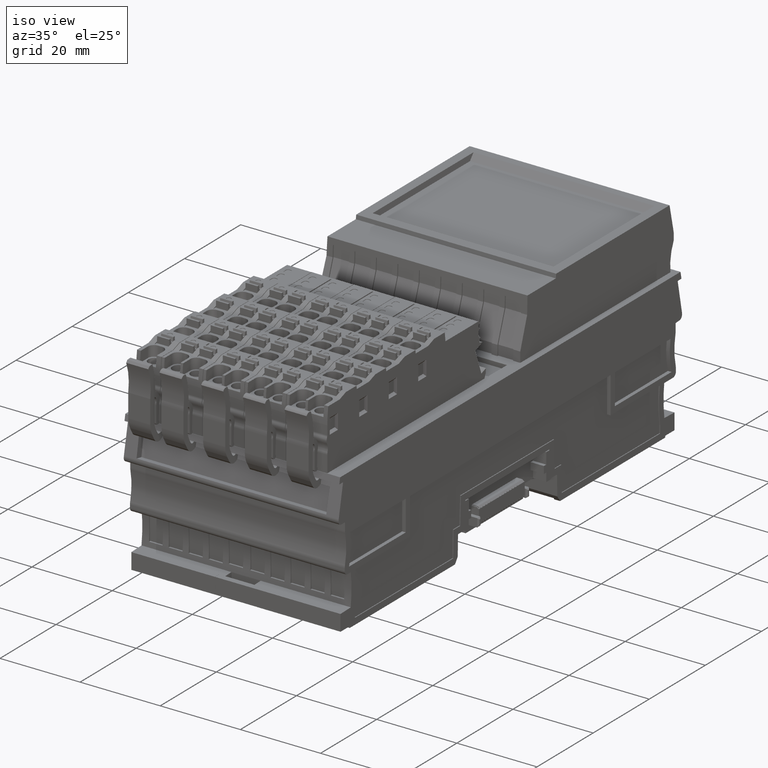
[diagram: clean part render]
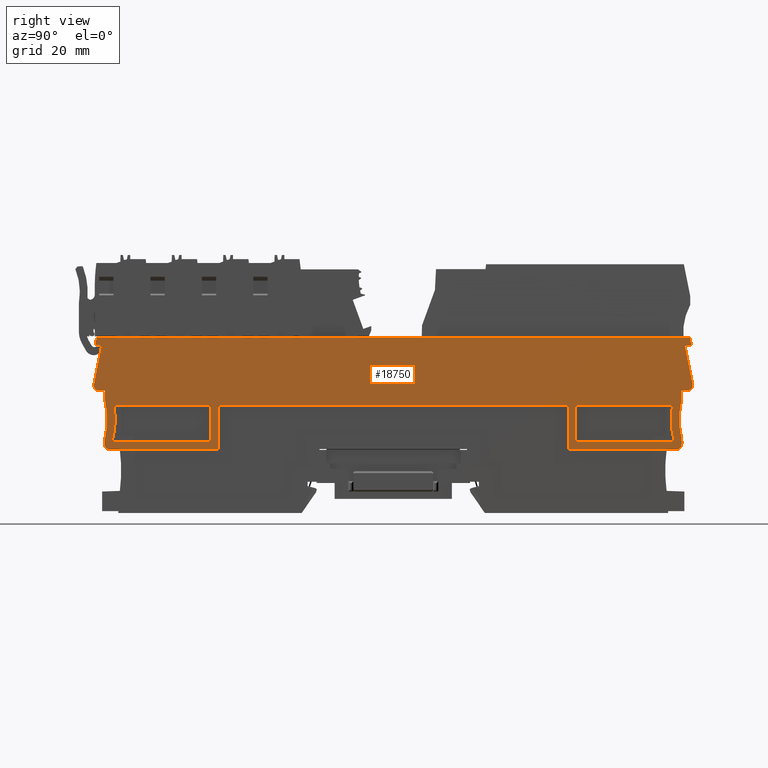
[diagram: tour spotlight — one face highlighted and labeled with its STEP entity id]
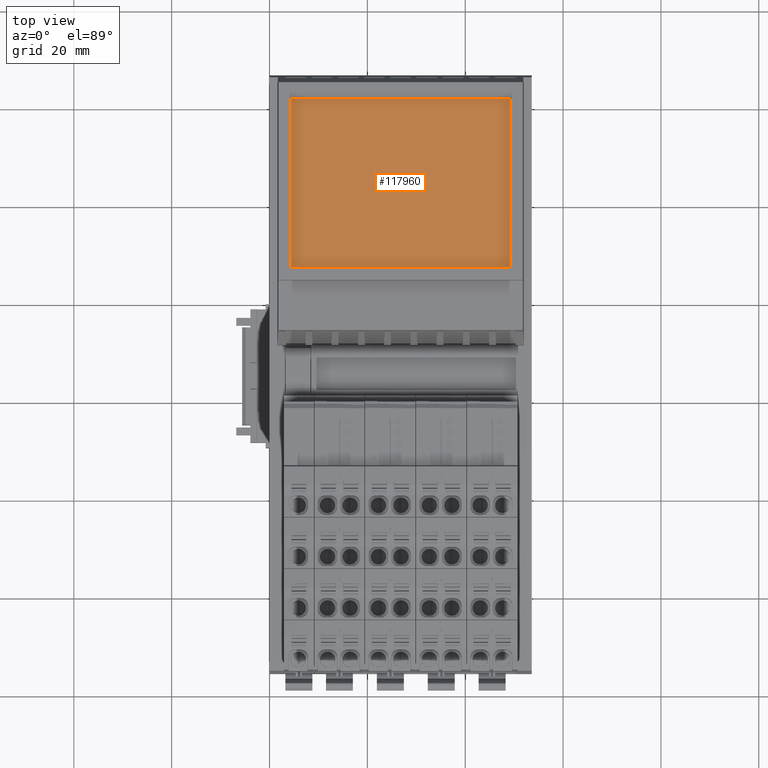
[diagram: tour spotlight — one face highlighted and labeled with its STEP entity id]
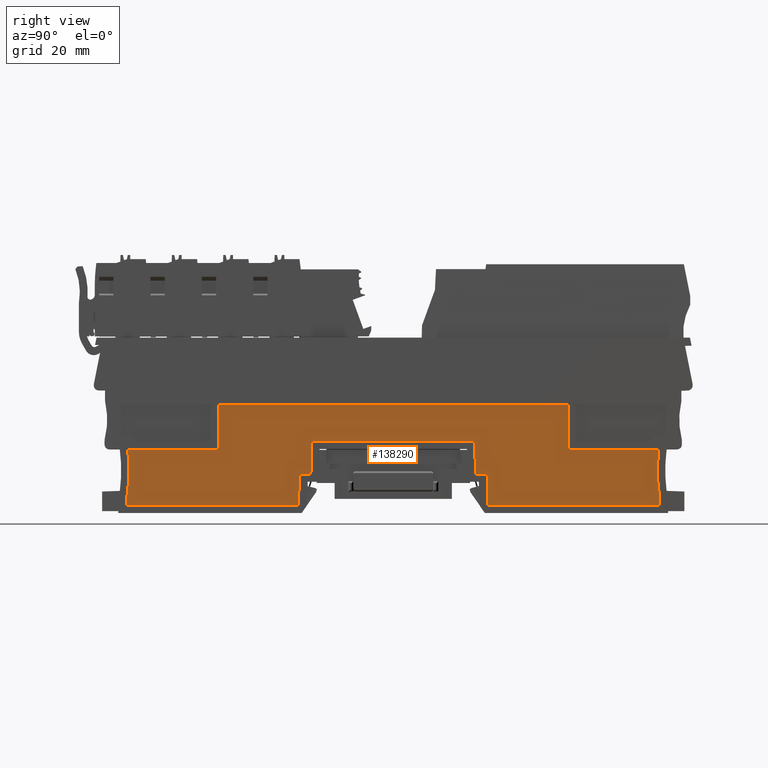
[diagram: tour spotlight — one face highlighted and labeled with its STEP entity id]
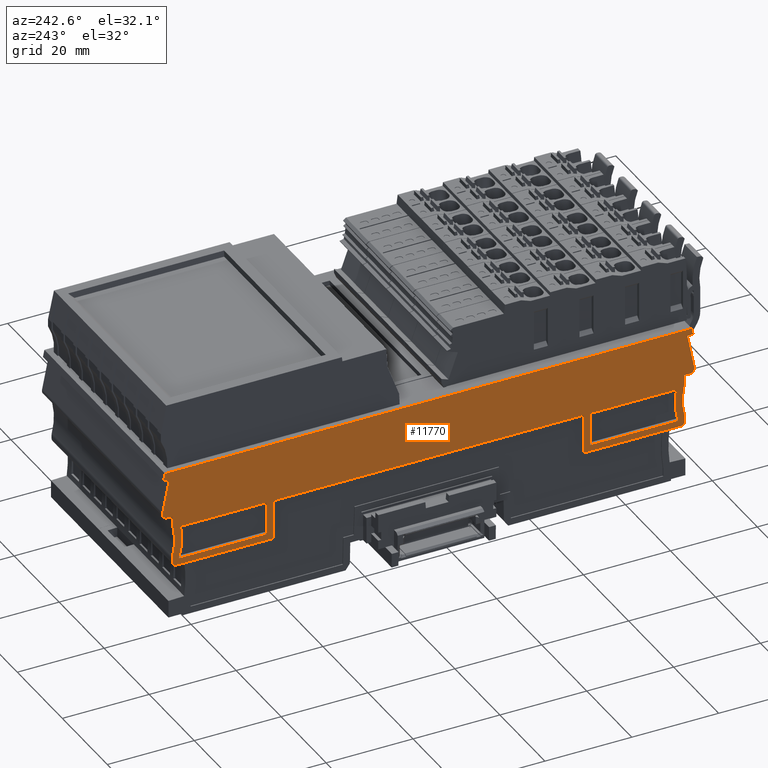
[diagram: tour spotlight — one face highlighted and labeled with its STEP entity id]
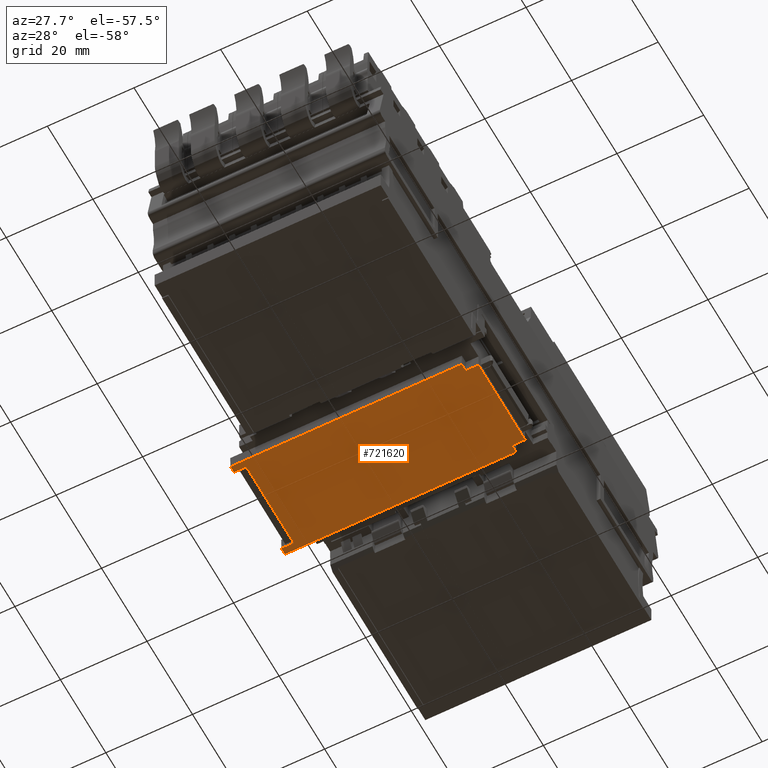
[diagram: tour spotlight — one face highlighted and labeled with its STEP entity id]
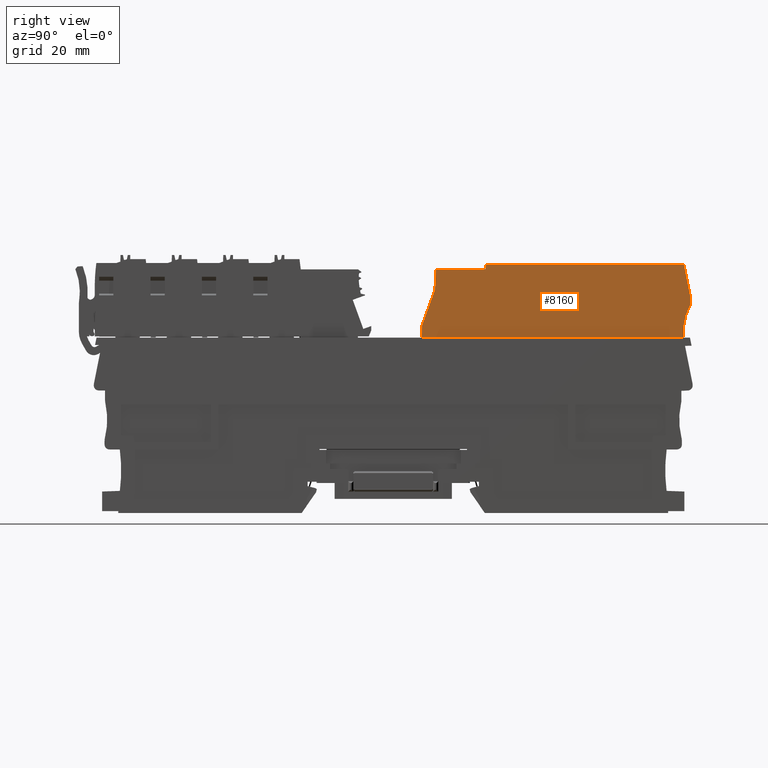
[diagram: tour spotlight — one face highlighted and labeled with its STEP entity id]
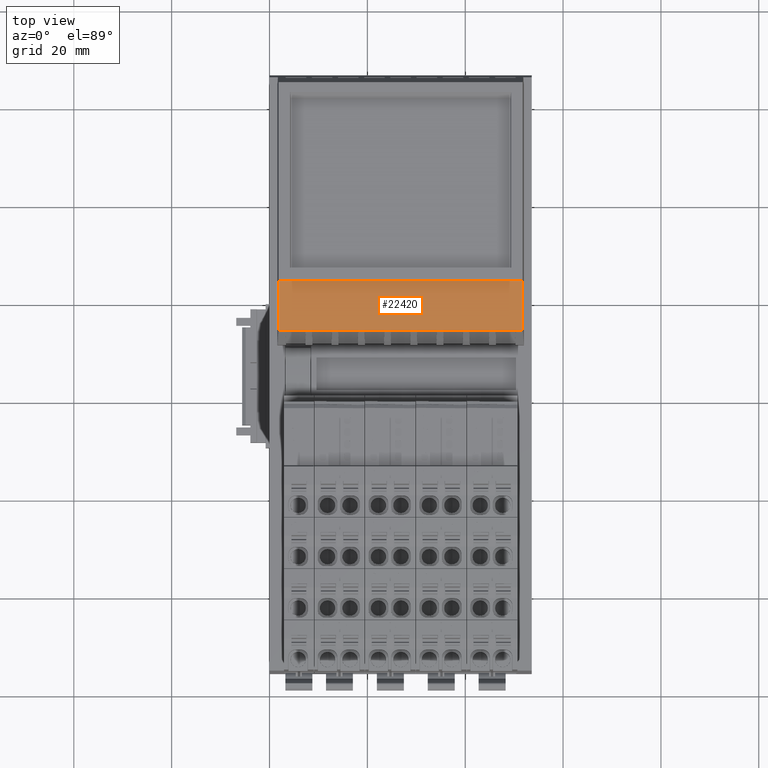
[diagram: tour spotlight — one face highlighted and labeled with its STEP entity id]
A machine part: a face-by-face anatomy tour. The part has 3724 B-rep faces; the first image is the clean iso view, then the 7 largest visible faces are spotlighted one at a time (largest first), each with its STEP entity span.

Face 1 — right view, entity #18750. In plain terms, the highlighted planar face has unit normal (1, -0, -0).
Definition (entity closure, byte-faithful):
#12280=CARTESIAN_POINT('',(93.815800781303,0.,3.70000000051144));
#12290=DIRECTION('',(0.313992455966661,-0.94942547764215,
-2.68035593720128E-13));
#12300=VECTOR('',#12290,1.);
#12310=LINE('',#12280,#12300);
#12320=CARTESIAN_POINT('',(80.842774783348,39.2268067927092,
3.70000000052251));
#12330=VERTEX_POINT('',#12320);
#12340=CARTESIAN_POINT('',(81.3687466988978,37.6364146426499,
3.70000000052206));
#12350=VERTEX_POINT('',#12340);
#12360=EDGE_CURVE('',#12330,#12350,#12310,.T.);
#14440=CARTESIAN_POINT('',(-37.9090186656117,14.7723236880623,
3.70000000144698));
#14450=DIRECTION('',(-7.58968217624116E-12,-4.17977253913716E-13,-1.));
#14460=DIRECTION('',(-0.121869343405398,0.992546151641291,
5.10087868628507E-13));
#14470=AXIS2_PLACEMENT_3D('',#14440,#14450,#14460);
#14480=CIRCLE('',#14470,1.);
#14490=CARTESIAN_POINT('',(-37.7871493222065,13.779777536421,
3.70000000144646));
#14500=VERTEX_POINT('',#14490);
#14510=CARTESIAN_POINT('',(-38.901564817253,14.6504543446571,
3.70000000145441));
#14520=VERTEX_POINT('',#14510);
#14530=EDGE_CURVE('',#14500,#14520,#14480,.T.);
#14870=CARTESIAN_POINT('',(80.0477578691952,37.4271905661819,
3.70000000052384));
#14880=VERTEX_POINT('',#14870);
#14910=CARTESIAN_POINT('',(0.,24.748871236802,3.70000000063159));
#14920=DIRECTION('',(-0.987688340595074,-0.156434465040634,
1.32951982756424E-12));
#14930=VECTOR('',#14920,1.);
#14940=LINE('',#14910,#14930);
#14950=EDGE_CURVE('',#12350,#14880,#14940,.T.);
#15560=CARTESIAN_POINT('',(79.6386639302353,31.2532861743375,
3.70000000052534));
#15570=DIRECTION('',(1.32156786577923E-12,1.54750484770808E-13,1.));
#15580=DIRECTION('',(0.992546151641322,0.121869343405148,
-1.33057643928266E-12));
#15590=AXIS2_PLACEMENT_3D('',#15560,#15570,#15580);
#15600=PLANE('',#15590);
#15610=CARTESIAN_POINT('',(0.,7.79022740937182,3.70000000063421));
#15620=DIRECTION('',(0.992546151641231,0.121869343405886,
-1.33057453943763E-12));
#15630=VECTOR('',#15620,1.);
#15640=LINE('',#15610,#15630);
#15650=CARTESIAN_POINT('',(60.2226611677651,15.1846404173057,
3.70000000055348));
#15660=VERTEX_POINT('',#15650);
#15670=CARTESIAN_POINT('',(80.2852212844979,17.6480130518428,
3.70000000052659));
#15680=VERTEX_POINT('',#15670);
#15690=EDGE_CURVE('',#15660,#15680,#15640,.T.);
#15700=ORIENTED_EDGE('',*,*,#15690,.F.);
#15710=CARTESIAN_POINT('',(95.4523300161358,24.1448440272239,
3.70000000050554));
#15720=DIRECTION('',(1.32156786577923E-12,1.54750484770808E-13,1.));
#15730=DIRECTION('',(-1.,0.,1.32156786577923E-12));
#15740=AXIS2_PLACEMENT_3D('',#15710,#15720,#15730);
#15750=CIRCLE('',#15740,16.4999999999999);
#15760=CARTESIAN_POINT('',(78.9826798540441,25.1451557477945,
3.70000000052715));
#15770=VERTEX_POINT('',#15760);
#15780=EDGE_CURVE('',#15770,#15680,#15750,.T.);
#15790=ORIENTED_EDGE('',*,*,#15780,.T.);
#15800=CARTESIAN_POINT('',(0.,15.4473020829513,3.70000000063303));
#15810=DIRECTION('',(-0.992546151641278,-0.121869343405506,
1.33058147833154E-12));
#15820=VECTOR('',#15810,1.);
#15830=LINE('',#15800,#15820);
#15840=CARTESIAN_POINT('',(59.2964541578763,22.727991169847,
3.70000000055354));
#15850=VERTEX_POINT('',#15840);
#15860=EDGE_CURVE('',#15770,#15850,#15830,.T.);
#15870=ORIENTED_EDGE('',*,*,#15860,.F.);
#15880=CARTESIAN_POINT('',(62.0871005738752,0.,3.70000000055337));
#15890=DIRECTION('',(0.121869343405321,-0.992546151641301,
-7.46624984060418E-15));
#15900=VECTOR('',#15890,1.);
#15910=LINE('',#15880,#15900);
#15920=EDGE_CURVE('',#15850,#15660,#15910,.T.);
#15930=ORIENTED_EDGE('',*,*,#15920,.F.);
#15940=EDGE_LOOP('',(#15930,#15870,#15790,#15700));
#15950=FACE_BOUND('',#15940,.T.);
#15960=CARTESIAN_POINT('',(0.,7.79022740939503,3.70000000063421));
#15970=DIRECTION('',(0.992546151641351,0.12186934340491,
-1.33057453943763E-12));
#15980=VECTOR('',#15970,1.);
#15990=LINE('',#15960,#15980);
#16000=CARTESIAN_POINT('',(-33.7850542939876,3.64194435283518,
3.70000000067951));
#16010=VERTEX_POINT('',#16000);
#16020=CARTESIAN_POINT('',(-13.7220277794501,6.10537425380112,
3.70000000065261));
#16030=VERTEX_POINT('',#16020);
#16040=EDGE_CURVE('',#16010,#16030,#15990,.T.);
#16050=ORIENTED_EDGE('',*,*,#16040,.F.);
#16060=CARTESIAN_POINT('',(-12.9723820825444,0.,3.70000000065256));
#16070=DIRECTION('',(0.121869343405931,-0.992546151641226,
-7.46624984060418E-15));
#16080=VECTOR('',#16070,1.);
#16090=LINE('',#16060,#16080);
#16100=CARTESIAN_POINT('',(-14.6482347893435,13.6487250063419,
3.70000000065267));
#16110=VERTEX_POINT('',#16100);
#16120=EDGE_CURVE('',#16110,#16030,#16090,.T.);
#16130=ORIENTED_EDGE('',*,*,#16120,.T.);
#16140=CARTESIAN_POINT('',(0.,15.4473020829562,3.70000000063303));
#16150=DIRECTION('',(-0.992546151641305,-0.12186934340529,
1.33058147833154E-12));
#16160=VECTOR('',#16150,1.);
#16170=LINE('',#16140,#16160);
#16180=CARTESIAN_POINT('',(-34.3349264116506,11.2315032198631,
3.70000000067906));
#16190=VERTEX_POINT('',#16180);
#16200=EDGE_CURVE('',#16110,#16190,#16170,.T.);
#16210=ORIENTED_EDGE('',*,*,#16200,.F.);
#16220=CARTESIAN_POINT('',(-50.0733605749496,6.27653701538715,
3.70000000070062));
#16230=DIRECTION('',(1.32156786577923E-12,1.54750484770808E-13,1.));
#16240=DIRECTION('',(-1.,0.,1.32156786577923E-12));
#16250=AXIS2_PLACEMENT_3D('',#16220,#16230,#16240);
#16260=CIRCLE('',#16250,16.4999999999999);
#16270=EDGE_CURVE('',#16010,#16190,#16260,.T.);
#16280=ORIENTED_EDGE('',*,*,#16270,.T.);
#16290=EDGE_LOOP('',(#16280,#16210,#16130,#16050));
#16300=FACE_BOUND('',#16290,.T.);
#16310=CARTESIAN_POINT('',(80.5890279730809,29.4209611834442,
3.70000000052436));
#16320=DIRECTION('',(1.32156786577923E-12,1.54750484770808E-13,1.));
#16330=DIRECTION('',(-1.,0.,1.32156786577923E-12));
#16340=AXIS2_PLACEMENT_3D('',#16310,#16320,#16330);
#16350=CIRCLE('',#16340,2.);
#16360=CARTESIAN_POINT('',(82.5741202763635,29.664699870255,
3.7000000005217));
#16370=VERTEX_POINT('',#16360);
#16380=CARTESIAN_POINT('',(82.4878789283654,30.0489460953767,
3.70000000052176));
#16390=VERTEX_POINT('',#16380);
#16400=EDGE_CURVE('',#16370,#16390,#16350,.T.);
#16410=ORIENTED_EDGE('',*,*,#16400,.T.);
#16420=CARTESIAN_POINT('',(86.2164874242568,0.,3.70000000052148));
#16430=DIRECTION('',(0.121869343405398,-0.992546151641291,
-7.46624984060418E-15));
#16440=VECTOR('',#16430,1.);
#16450=LINE('',#16420,#16440);
#16460=CARTESIAN_POINT('',(82.586213454047,29.5662088417853,
3.7000000005217));
#16470=VERTEX_POINT('',#16460);
#16480=EDGE_CURVE('',#16370,#16470,#16450,.T.);
#16490=ORIENTED_EDGE('',*,*,#16480,.F.);
#16500=CARTESIAN_POINT('',(81.5936673024057,29.44433949838,
3.70000000052303));
#16510=DIRECTION('',(1.32156786577923E-12,1.54750484770808E-13,1.));
#16520=DIRECTION('',(-1.,0.,1.32156786577923E-12));
#16530=AXIS2_PLACEMENT_3D('',#16500,#16510,#16520);
#16540=CIRCLE('',#16530,1.);
#16550=CARTESIAN_POINT('',(81.7673154800729,28.4595317453678,
3.70000000052295));
#16560=VERTEX_POINT('',#16550);
#16570=EDGE_CURVE('',#16560,#16470,#16540,.T.);
#16580=ORIENTED_EDGE('',*,*,#16570,.T.);
#16590=CARTESIAN_POINT('',(0.,14.0417478861087,3.70000000063325));
#16600=DIRECTION('',(-0.984807753012164,-0.173648177667179,
1.328381848964E-12));
#16610=VECTOR('',#16600,1.);
#16620=LINE('',#16590,#16610);
#16630=CARTESIAN_POINT('',(80.434159982601,28.2244604616833,
3.70000000052475));
#16640=VERTEX_POINT('',#16630);
#16650=EDGE_CURVE('',#16560,#16640,#16620,.T.);
#16660=ORIENTED_EDGE('',*,*,#16650,.F.);
#16670=CARTESIAN_POINT('',(83.8996879671174,0.,3.70000000052454));
#16680=DIRECTION('',(0.121869343405398,-0.992546151641291,
-7.46624984060418E-15));
#16690=VECTOR('',#16680,1.);
#16700=LINE('',#16670,#16690);
#16710=CARTESIAN_POINT('',(80.6674319708124,26.3246125820632,
3.70000000052474));
#16720=VERTEX_POINT('',#16710);
#16730=EDGE_CURVE('',#16640,#16720,#16700,.T.);
#16740=ORIENTED_EDGE('',*,*,#16730,.F.);
#16750=CARTESIAN_POINT('',(77.6897935158885,25.9590045518471,
3.70000000052873));
#16760=DIRECTION('',(1.32156786577923E-12,1.54750484770808E-13,1.));
#16770=DIRECTION('',(-1.,0.,1.32156786577923E-12));
#16780=AXIS2_PLACEMENT_3D('',#16750,#16760,#16770);
#16790=CIRCLE('',#16780,3.);
#16800=CARTESIAN_POINT('',(80.6750088727256,25.6615330854771,
3.70000000052483));
#16810=VERTEX_POINT('',#16800);
#16820=EDGE_CURVE('',#16810,#16720,#16790,.T.);
#16830=ORIENTED_EDGE('',*,*,#16820,.T.);
#16840=CARTESIAN_POINT('',(95.6508392461914,24.1692178958544,
3.70000000050527));
#16850=DIRECTION('',(1.32156786577923E-12,1.54750484770808E-13,1.));
#16860=DIRECTION('',(-1.,0.,1.32156786577923E-12));
#16870=AXIS2_PLACEMENT_3D('',#16840,#16850,#16860);
#16880=CIRCLE('',#16870,15.05);
#16890=CARTESIAN_POINT('',(81.6057878124132,18.7619052340487,
3.70000000052467));
#16900=VERTEX_POINT('',#16890);
#16910=EDGE_CURVE('',#16810,#16900,#16880,.T.);
#16920=ORIENTED_EDGE('',*,*,#16910,.F.);
#16930=CARTESIAN_POINT('',(78.8061097857464,17.6840356004661,
3.70000000052854));
#16940=DIRECTION('',(1.32156786577923E-12,1.54750484770808E-13,1.));
#16950=DIRECTION('',(-1.,0.,1.32156786577923E-12));
#16960=AXIS2_PLACEMENT_3D('',#16930,#16940,#16950);
#16970=CIRCLE('',#16960,3.);
#16980=CARTESIAN_POINT('',(81.7837482406701,18.0496436306838,
3.70000000052454));
#16990=VERTEX_POINT('',#16980);
#17000=EDGE_CURVE('',#16990,#16900,#16970,.T.);
#17010=ORIENTED_EDGE('',*,*,#17000,.T.);
#17020=CARTESIAN_POINT('',(83.999965808121,0.,3.70000000052441));
#17030=DIRECTION('',(-0.121869343405886,0.992546151641232,
7.46624984060418E-15));
#17040=VECTOR('',#17030,1.);
#17050=LINE('',#17020,#17040);
#17060=CARTESIAN_POINT('',(81.8710082001947,17.3389682893172,
3.70000000052454));
#17070=VERTEX_POINT('',#17060);
#17080=EDGE_CURVE('',#17070,#16990,#17050,.T.);
#17090=ORIENTED_EDGE('',*,*,#17080,.T.);
#17100=CARTESIAN_POINT('',(80.8784620485535,17.2170989459113,
3.70000000052587));
#17110=DIRECTION('',(1.32156786577923E-12,1.54750484770808E-13,1.));
#17120=DIRECTION('',(-1.,0.,1.32156786577923E-12));
#17130=AXIS2_PLACEMENT_3D('',#17100,#17110,#17120);
#17140=CIRCLE('',#17130,1.);
#17150=CARTESIAN_POINT('',(81.0003313919592,16.2245527942696,
3.70000000055433));
#17160=VERTEX_POINT('',#17150);
#17170=EDGE_CURVE('',#17160,#17070,#17140,.T.);
#17180=ORIENTED_EDGE('',*,*,#17170,.T.);
#17190=CARTESIAN_POINT('',(0.,6.27896267125826,3.70000000063445));
#17200=DIRECTION('',(-0.992546151641231,-0.121869343405886,
1.33057453943763E-12));
#17210=VECTOR('',#17200,1.);
#17220=LINE('',#17190,#17210);
#17230=CARTESIAN_POINT('',(58.916645635253,13.5130171354993,
3.70000000055547));
#17240=VERTEX_POINT('',#17230);
#17250=EDGE_CURVE('',#17160,#17240,#17220,.T.);
#17260=ORIENTED_EDGE('',*,*,#17250,.F.);
#17270=CARTESIAN_POINT('',(60.5758355107111,0.,3.70000000055536));
#17280=DIRECTION('',(-0.121869343405321,0.992546151641301,
7.46624984060418E-15));
#17290=VECTOR('',#17280,1.);
#17300=LINE('',#17270,#17290);
#17310=CARTESIAN_POINT('',(57.8076346102601,22.5451871154718,
3.70000000055553));
#17320=VERTEX_POINT('',#17310);
#17330=EDGE_CURVE('',#17240,#17320,#17300,.T.);
#17340=ORIENTED_EDGE('',*,*,#17330,.F.);
#17350=CARTESIAN_POINT('',(0.,15.4473020829924,3.70000000063303));
#17360=DIRECTION('',(0.992546151641274,0.121869343405538,
-1.33057453943763E-12));
#17370=VECTOR('',#17360,1.);
#17380=LINE('',#17350,#17370);
#17390=CARTESIAN_POINT('',(-13.1594152417363,13.8315290607915,
3.70000000065067));
#17400=VERTEX_POINT('',#17390);
#17410=EDGE_CURVE('',#17400,#17320,#17380,.T.);
#17420=ORIENTED_EDGE('',*,*,#17410,.T.);
#17430=CARTESIAN_POINT('',(-11.4611170193802,0.,3.70000000065057));
#17440=DIRECTION('',(-0.121869343405931,0.992546151641226,
7.46624984060418E-15));
#17450=VECTOR('',#17440,1.);
#17460=LINE('',#17430,#17450);
#17470=CARTESIAN_POINT('',(-12.0504042167386,4.79935908082569,
3.7000000006506));
#17480=VERTEX_POINT('',#17470);
#17490=EDGE_CURVE('',#17480,#17400,#17460,.T.);
#17500=ORIENTED_EDGE('',*,*,#17490,.T.);
#17510=CARTESIAN_POINT('',(0.,6.27896267127504,3.70000000063445));
#17520=DIRECTION('',(-0.992546151641376,-0.121869343404709,
1.33058147833154E-12));
#17530=VECTOR('',#17520,1.);
#17540=LINE('',#17510,#17530);
#17550=CARTESIAN_POINT('',(-34.1350221984192,2.08770895924654,
3.70000000068021));
#17560=VERTEX_POINT('',#17550);
#17570=EDGE_CURVE('',#17480,#17560,#17540,.T.);
#17580=ORIENTED_EDGE('',*,*,#17570,.F.);
#17590=CARTESIAN_POINT('',(-34.2568915418222,3.08025511087354,
3.70000000068022));
#17600=DIRECTION('',(1.32156786577923E-12,1.54750484770808E-13,1.));
#17610=DIRECTION('',(-1.,0.,1.32156786577923E-12));
#17620=AXIS2_PLACEMENT_3D('',#17590,#17600,#17610);
#17630=CIRCLE('',#17620,1.);
#17640=CARTESIAN_POINT('',(-35.2494376934635,2.95838576746863,
3.70000000068155));
#17650=VERTEX_POINT('',#17640);
#17660=EDGE_CURVE('',#17650,#17560,#17630,.T.);
#17670=ORIENTED_EDGE('',*,*,#17660,.T.);
#17680=CARTESIAN_POINT('',(-39.0030134710266,33.5288072436565,
3.70000000145875));
#17690=DIRECTION('',(0.12186934340491,-0.992546151641351,
-1.10425502667236E-12));
#17700=VECTOR('',#17690,1.);
#17710=LINE('',#17680,#17700);
#17720=CARTESIAN_POINT('',(-35.3364692465699,3.66720087515703,
3.70000000142553));
#17730=VERTEX_POINT('',#17720);
#17740=EDGE_CURVE('',#17730,#17650,#17710,.T.);
#17750=ORIENTED_EDGE('',*,*,#17740,.T.);
#17760=CARTESIAN_POINT('',(-32.3588307902328,4.03280890554563,
3.70000000140321));
#17770=DIRECTION('',(7.50284653573329E-12,9.77385265280061E-13,1.));
#17780=DIRECTION('',(-0.121869343405523,0.992546151641276,
-5.57330027423933E-14));
#17790=AXIS2_PLACEMENT_3D('',#17760,#17770,#17780);
#17800=CIRCLE('',#17790,3.);
#17810=CARTESIAN_POINT('',(-35.3360671916786,4.40167664648861,
3.7000000014267));
#17820=VERTEX_POINT('',#17810);
#17830=EDGE_CURVE('',#17820,#17730,#17800,.T.);
#17840=ORIENTED_EDGE('',*,*,#17830,.T.);
#17850=CARTESIAN_POINT('',(-50.2718698052742,6.25216314676647,
3.70000000153834));
#17860=DIRECTION('',(7.5885884426013E-12,9.3590051218711E-13,1.));
#17870=DIRECTION('',(0.992546151641307,0.121869343405273,
-7.64608183600653E-12));
#17880=AXIS2_PLACEMENT_3D('',#17850,#17860,#17870);
#17890=CIRCLE('',#17880,15.05);
#17900=CARTESIAN_POINT('',(-36.1019093192676,11.3231314749902,
3.70000000143348));
#17910=VERTEX_POINT('',#17900);
#17920=EDGE_CURVE('',#17820,#17910,#17890,.T.);
#17930=ORIENTED_EDGE('',*,*,#17920,.F.);
#17940=CARTESIAN_POINT('',(-33.2773324766416,12.3339557270137,
3.70000000141168));
#17950=DIRECTION('',(7.50284653573329E-12,9.77385265280061E-13,1.));
#17960=DIRECTION('',(-0.121869343405523,0.992546151641276,
-5.57330027423933E-14));
#17970=AXIS2_PLACEMENT_3D('',#17940,#17950,#17960);
#17980=CIRCLE('',#17970,3.);
#17990=CARTESIAN_POINT('',(-36.2549709329744,11.9683476966242,
3.70000000143438));
#18000=VERTEX_POINT('',#17990);
#18010=EDGE_CURVE('',#18000,#17910,#17980,.T.);
#18020=ORIENTED_EDGE('',*,*,#18010,.T.);
#18030=CARTESIAN_POINT('',(-34.7854426158993,3.76849129679613E-9,
3.70000000142069));
#18040=DIRECTION('',(0.121869343405197,-0.992546151641316,
-1.1042555758678E-12));
#18050=VECTOR('',#18040,1.);
#18060=LINE('',#18030,#18050);
#18070=CARTESIAN_POINT('',(-36.4968393255422,13.9382076827901,
3.7000000014362));
#18080=VERTEX_POINT('',#18070);
#18090=EDGE_CURVE('',#18080,#18000,#18060,.T.);
#18100=ORIENTED_EDGE('',*,*,#18090,.T.);
#18110=CARTESIAN_POINT('',(-1.53261652258152E-8,18.4194560718407,
3.70000000116263));
#18120=DIRECTION('',(-0.992546151641316,-0.121869343405197,
7.43974326589125E-12));
#18130=VECTOR('',#18120,1.);
#18140=LINE('',#18110,#18130);
#18150=EDGE_CURVE('',#18080,#14500,#18140,.T.);
#18160=ORIENTED_EDGE('',*,*,#18150,.F.);
#18170=ORIENTED_EDGE('',*,*,#14530,.F.);
#18180=CARTESIAN_POINT('',(-41.2109888734647,33.4592039184621,
3.7000000014751));
#18190=DIRECTION('',(0.121869343405398,-0.992546151641291,
-1.10425502667602E-12));
#18200=VECTOR('',#18190,1.);
#18210=LINE('',#18180,#18200);
#18220=CARTESIAN_POINT('',(-38.9132423908747,14.7455605606277,
3.70000000068456));
#18230=VERTEX_POINT('',#18220);
#18240=EDGE_CURVE('',#18230,#14520,#18210,.T.);
#18250=ORIENTED_EDGE('',*,*,#18240,.T.);
#18260=CARTESIAN_POINT('',(-36.9281500875921,14.9892992474384,
3.7000000006819));
#18270=DIRECTION('',(1.32156786577923E-12,1.54750484770808E-13,1.));
#18280=DIRECTION('',(-1.,0.,1.32156786577923E-12));
#18290=AXIS2_PLACEMENT_3D('',#18260,#18270,#18280);
#18300=CIRCLE('',#18290,2.);
#18310=CARTESIAN_POINT('',(-38.9225203559505,15.1392567011859,
3.70000000068452));
#18320=VERTEX_POINT('',#18310);
#18330=EDGE_CURVE('',#18320,#18230,#18300,.T.);
#18340=ORIENTED_EDGE('',*,*,#18330,.T.);
#18350=CARTESIAN_POINT('',(-37.510876360429,33.9135206086674,
3.70000000144738));
#18360=DIRECTION('',(-0.0749787268246369,-0.997185133525243,
3.74922733441569E-13));
#18370=VECTOR('',#18360,1.);
#18380=LINE('',#18350,#18370);
#18390=CARTESIAN_POINT('',(-38.325185462403,23.0835563819879,
3.7000000006825));
#18400=VERTEX_POINT('',#18390);
#18410=EDGE_CURVE('',#18400,#18320,#18380,.T.);
#18420=ORIENTED_EDGE('',*,*,#18410,.T.);
#18430=CARTESIAN_POINT('',(0.,27.7892974505114,3.70000000063112));
#18440=DIRECTION('',(-0.992546151641322,-0.121869343405147,
1.33057453943763E-12));
#18450=VECTOR('',#18440,1.);
#18460=LINE('',#18430,#18450);
#18470=CARTESIAN_POINT('',(-39.6550720687103,22.9202668389818,
3.70000000068428));
#18480=VERTEX_POINT('',#18470);
#18490=EDGE_CURVE('',#18400,#18480,#18460,.T.);
#18500=ORIENTED_EDGE('',*,*,#18490,.F.);
#18510=CARTESIAN_POINT('',(-41.3784555892675,0.,3.7000000006901));
#18520=DIRECTION('',(-0.074978726824385,-0.997185133525262,
2.53408405370692E-13));
#18530=VECTOR('',#18520,1.);
#18540=LINE('',#18510,#18530);
#18550=CARTESIAN_POINT('',(-39.5403806460796,24.4456139132008,
3.70000000068389));
#18560=VERTEX_POINT('',#18550);
#18570=EDGE_CURVE('',#18560,#18480,#18540,.T.);
#18580=ORIENTED_EDGE('',*,*,#18570,.T.);
#18590=CARTESIAN_POINT('',(0.,29.3005621887634,3.70000000063089));
#18600=DIRECTION('',(-0.992546151641322,-0.121869343405148,
1.33057453943763E-12));
#18610=VECTOR('',#18600,1.);
#18620=LINE('',#18590,#18610);
#18630=EDGE_CURVE('',#12330,#18560,#18620,.T.);
#18640=ORIENTED_EDGE('',*,*,#18630,.T.);
#18650=ORIENTED_EDGE('',*,*,#12360,.F.);
#18660=ORIENTED_EDGE('',*,*,#14950,.F.);
#18670=CARTESIAN_POINT('',(92.4256177039416,0.,3.70000000051327));
#18680=DIRECTION('',(0.313992455966276,-0.949425477642277,
-2.68035593720128E-13));
#18690=VECTOR('',#18680,1.);
#18700=LINE('',#18670,#18690);
#18710=EDGE_CURVE('',#14880,#16390,#18700,.T.);
#18720=ORIENTED_EDGE('',*,*,#18710,.F.);
#18730=EDGE_LOOP('',(#18720,#18660,#18650,#18640,#18580,#18500,#18420,
#18340,#18250,#18170,#18160,#18100,#18020,#17930,#17840,#17750,#17670,
#17580,#17500,#17420,#17340,#17260,#17180,#17090,#17010,#16920,#16830,
#16740,#16660,#16580,#16490,#16410));
#18740=FACE_OUTER_BOUND('',#18730,.T.);
#18750=ADVANCED_FACE('',(#15950,#16300,#18740),#15600,.T.);

Face 2 — top view, entity #117960. In plain terms, the highlighted planar face has unit normal (-0, 0, 1).
Definition (entity closure, byte-faithful):
#114240=CARTESIAN_POINT('',(74.5555165529137,52.1569611703615,
-0.643744289520966));
#114250=VERTEX_POINT('',#114240);
#114280=CARTESIAN_POINT('',(74.5555165529184,52.1569611703625,0.));
#114290=DIRECTION('',(7.40740491584608E-12,1.61380685477058E-12,1.));
#114300=VECTOR('',#114290,1.);
#114310=LINE('',#114280,#114300);
#114320=CARTESIAN_POINT('',(74.555516552581,52.156961170289,
-45.556255625995));
#114330=VERTEX_POINT('',#114320);
#114340=EDGE_CURVE('',#114330,#114250,#114310,.T.);
#117660=CARTESIAN_POINT('',(39.5682647075963,47.8610668153365,
35.0000000425078));
#117670=DIRECTION('',(-0.121869343405803,0.992546151641242,
-6.99042209759714E-13));
#117680=DIRECTION('',(7.40740491584608E-12,1.61380685477058E-12,1.));
#117690=AXIS2_PLACEMENT_3D('',#117660,#117670,#117680);
#117700=PLANE('',#117690);
#117710=CARTESIAN_POINT('',(0.,43.0026948074728,-0.64374428895393));
#117720=DIRECTION('',(-0.992546151641242,-0.121869343405803,
7.54886995881527E-12));
#117730=VECTOR('',#117720,1.);
#117740=LINE('',#117710,#117730);
#117750=CARTESIAN_POINT('',(40.3213367998216,47.953532441484,
-0.643744289260596));
#117760=VERTEX_POINT('',#117750);
#117770=EDGE_CURVE('',#114250,#117760,#117740,.T.);
#117780=ORIENTED_EDGE('',*,*,#117770,.F.);
#117790=CARTESIAN_POINT('',(40.3213367998263,47.953532441485,0.));
#117800=DIRECTION('',(7.40740491584608E-12,1.61380685477058E-12,1.));
#117810=VECTOR('',#117800,1.);
#117820=LINE('',#117790,#117810);
#117830=CARTESIAN_POINT('',(40.3213367994889,47.9535324414115,
-45.5562556257346));
#117840=VERTEX_POINT('',#117830);
#117850=EDGE_CURVE('',#117840,#117760,#117820,.T.);
#117860=ORIENTED_EDGE('',*,*,#117850,.T.);
#117870=CARTESIAN_POINT('',(0.,43.0026948074411,-45.5562556254279));
#117880=DIRECTION('',(-0.992546151641242,-0.121869343405803,
7.54884906261722E-12));
#117890=VECTOR('',#117880,1.);
#117900=LINE('',#117870,#117890);
#117910=EDGE_CURVE('',#114330,#117840,#117900,.T.);
#117920=ORIENTED_EDGE('',*,*,#117910,.T.);
#117930=ORIENTED_EDGE('',*,*,#114340,.F.);
#117940=EDGE_LOOP('',(#117930,#117920,#117860,#117780));
#117950=FACE_OUTER_BOUND('',#117940,.T.);
#117960=ADVANCED_FACE('',(#117950),#117700,.T.);

Face 3 — right view, entity #138290. In plain terms, the highlighted planar face has unit normal (-1, 0, 0).
Definition (entity closure, byte-faithful):
#101480=CARTESIAN_POINT('',(77.3043721213402,15.7707460581101,
2.80000000139183));
#101490=VERTEX_POINT('',#101480);
#101520=CARTESIAN_POINT('',(0.,6.27896267125821,2.80000000110418));
#101530=DIRECTION('',(-0.992546151641231,-0.121869343405886,
-3.69326791371805E-12));
#101540=VECTOR('',#101530,1.);
#101550=LINE('',#101520,#101540);
#101560=CARTESIAN_POINT('',(58.9166456351861,13.513017135491,
2.8000000013234));
#101570=VERTEX_POINT('',#101560);
#101580=EDGE_CURVE('',#101490,#101570,#101550,.T.);
#106120=CARTESIAN_POINT('',(-12.0504042166852,4.7993590808322,
2.80000000105934));
#106130=VERTEX_POINT('',#106120);
#106160=CARTESIAN_POINT('',(0.,6.27896267127499,2.80000000110418));
#106170=DIRECTION('',(-0.992546151641376,-0.121869343404709,
-3.69326791371805E-12));
#106180=VECTOR('',#106170,1.);
#106190=LINE('',#106160,#106180);
#106200=CARTESIAN_POINT('',(-30.4390629302317,2.54151569510426,
2.80000000099091));
#106210=VERTEX_POINT('',#106200);
#106220=EDGE_CURVE('',#106130,#106210,#106190,.T.);
#135840=CARTESIAN_POINT('',(-29.4078582783544,-6.87211907401066,
2.80000000098537));
#135850=VERTEX_POINT('',#135840);
#135880=CARTESIAN_POINT('',(-30.251648401332,0.,2.80000000098645));
#135890=DIRECTION('',(0.121869343405539,-0.992546151641274,
-1.57467788808319E-12));
#135900=VECTOR('',#135890,1.);
#135910=LINE('',#135880,#135900);
#135920=CARTESIAN_POINT('',(-29.1725454181969,-8.78858852608461,
2.8000000009725));
#135930=VERTEX_POINT('',#135920);
#135940=EDGE_CURVE('',#135850,#135930,#135910,.T.);
#136210=CARTESIAN_POINT('',(5.63251622227872,-4.51506431532444,
2.80000000110201));
#136220=VERTEX_POINT('',#136210);
#136270=CARTESIAN_POINT('',(0.,-5.20665034646122,2.80000000108105));
#136280=DIRECTION('',(0.992546151641198,0.121869343406155,
3.69326791371805E-12));
#136290=VECTOR('',#136280,1.);
#136300=LINE('',#136270,#136290);
#136310=EDGE_CURVE('',#135930,#136220,#136300,.T.);
#136910=CARTESIAN_POINT('',(43.1215029436729,6.53606734086375,
2.80000000125449));
#136920=VERTEX_POINT('',#136910);
#136950=CARTESIAN_POINT('',(44.0400873034286,0.,2.80000000124452));
#136960=DIRECTION('',(0.139173100960016,-0.990268068741577,
-1.50997270242925E-12));
#136970=VECTOR('',#136960,1.);
#136980=LINE('',#136950,#136970);
#136990=CARTESIAN_POINT('',(44.0123464695942,0.197386289138983,
2.80000000124483));
#137000=VERTEX_POINT('',#136990);
#137010=EDGE_CURVE('',#136920,#137000,#136980,.T.);
#137190=CARTESIAN_POINT('',(-24.1029654223059,-5.97422914989019,
2.80000000099578));
#137200=DIRECTION('',(3.47382654193631E-12,2.01303365496339E-12,-1.));
#137210=DIRECTION('',(-0.99254615164137,-0.121869343404761,
-3.69326025545061E-12));
#137220=AXIS2_PLACEMENT_3D('',#137190,#137200,#137210);
#137230=PLANE('',#137220);
#137240=CARTESIAN_POINT('',(110.903735656606,15.5639369068662,
2.80000000150813));
#137250=DIRECTION('',(-3.71422913355509E-12,-4.00157385418018E-13,1.));
#137260=DIRECTION('',(0.992546151641291,0.121869343405398,
3.73531075064378E-12));
#137270=AXIS2_PLACEMENT_3D('',#137240,#137250,#137260);
#137280=CIRCLE('',#137270,33.6);
#137290=CARTESIAN_POINT('',(78.5811630214924,6.38726549247054,
2.80000000137737));
#137300=VERTEX_POINT('',#137290);
#137310=EDGE_CURVE('',#101490,#137300,#137280,.T.);
#137320=ORIENTED_EDGE('',*,*,#137310,.F.);
#137330=CARTESIAN_POINT('',(79.3654206103564,0.,2.80000000136724));
#137340=DIRECTION('',(-0.121869343405257,0.992546151641309,
1.57467788808319E-12));
#137350=VECTOR('',#137340,1.);
#137360=LINE('',#137330,#137350);
#137370=CARTESIAN_POINT('',(78.8164758821081,4.47079603666059,
2.80000000137433));
#137380=VERTEX_POINT('',#137370);
#137390=EDGE_CURVE('',#137380,#137300,#137360,.T.);
#137400=ORIENTED_EDGE('',*,*,#137390,.T.);
#137410=CARTESIAN_POINT('',(0.,-5.20665034643441,2.80000000108105));
#137420=DIRECTION('',(0.992546151641328,0.121869343405098,
3.69326791371805E-12));
#137430=VECTOR('',#137420,1.);
#137440=LINE('',#137410,#137430);
#137450=EDGE_CURVE('',#137000,#137380,#137440,.T.);
#137460=ORIENTED_EDGE('',*,*,#137450,.T.);
#137470=ORIENTED_EDGE('',*,*,#137010,.T.);
#137480=CARTESIAN_POINT('',(0.,1.2414125364592,2.80000000109403));
#137490=DIRECTION('',(0.992546151641343,0.121869343404974,
3.69326791371805E-12));
#137500=VECTOR('',#137490,1.);
#137510=LINE('',#137480,#137500);
#137520=CARTESIAN_POINT('',(40.7619936262765,6.24635602538132,
2.80000000124571));
#137530=VERTEX_POINT('',#137520);
#137540=EDGE_CURVE('',#137530,#136920,#137510,.T.);
#137550=ORIENTED_EDGE('',*,*,#137540,.T.);
#137560=CARTESIAN_POINT('',(41.751319229424,0.,2.80000000123657));
#137570=DIRECTION('',(-0.15643446504018,0.987688340595146,
1.44483036645937E-12));
#137580=VECTOR('',#137570,1.);
#137590=LINE('',#137560,#137580);
#137600=CARTESIAN_POINT('',(39.7132438404768,12.8679015739919,
2.8000000012554));
#137610=VERTEX_POINT('',#137600);
#137620=EDGE_CURVE('',#137530,#137610,#137590,.T.);
#137630=ORIENTED_EDGE('',*,*,#137620,.F.);
#137640=CARTESIAN_POINT('',(0.,7.99172836702443,2.80000000110762));
#137650=DIRECTION('',(0.992546151641369,0.121869343404768,
3.69326791371805E-12));
#137660=VECTOR('',#137650,1.);
#137670=LINE('',#137640,#137660);
#137680=CARTESIAN_POINT('',(6.73861180346425,8.8191258584053,
2.8000000011327));
#137690=VERTEX_POINT('',#137680);
#137700=EDGE_CURVE('',#137690,#137610,#137670,.T.);
#137710=ORIENTED_EDGE('',*,*,#137700,.T.);
#137720=CARTESIAN_POINT('',(7.51018533829207,0.,2.80000000111762));
#137730=DIRECTION('',(-0.0871557427486701,0.996194698091657,
1.70261027498952E-12));
#137740=VECTOR('',#137730,1.);
#137750=LINE('',#137720,#137740);
#137760=CARTESIAN_POINT('',(7.32291121929824,2.14055297502809,
2.80000000112128));
#137770=VERTEX_POINT('',#137760);
#137780=EDGE_CURVE('',#137770,#137690,#137750,.T.);
#137790=ORIENTED_EDGE('',*,*,#137780,.T.);
#137800=CARTESIAN_POINT('',(0.,1.24141253642713,2.80000000109403));
#137810=DIRECTION('',(0.992546151641183,0.121869343406278,
3.69326791371805E-12));
#137820=VECTOR('',#137810,1.);
#137830=LINE('',#137800,#137820);
#137840=CARTESIAN_POINT('',(4.96343215261972,1.85084537386364,
2.8000000011125));
#137850=VERTEX_POINT('',#137840);
#137860=EDGE_CURVE('',#137850,#137770,#137830,.T.);
#137870=ORIENTED_EDGE('',*,*,#137860,.T.);
#137880=CARTESIAN_POINT('',(5.15796384023657,0.,2.80000000110945));
#137890=DIRECTION('',(-0.104528463268663,0.994521895368167,
1.63889041226994E-12));
#137900=VECTOR('',#137890,1.);
#137910=LINE('',#137880,#137900);
#137920=EDGE_CURVE('',#136220,#137850,#137910,.T.);
#137930=ORIENTED_EDGE('',*,*,#137920,.T.);
#137940=ORIENTED_EDGE('',*,*,#136310,.T.);
#137950=ORIENTED_EDGE('',*,*,#135940,.T.);
#137960=CARTESIAN_POINT('',(-62.9903501121935,-5.7875720579124,
2.80000000086107));
#137970=DIRECTION('',(-3.71422913355509E-12,-4.00157385418018E-13,1.));
#137980=DIRECTION('',(0.992546151641291,0.121869343405398,
3.73531075064378E-12));
#137990=AXIS2_PLACEMENT_3D('',#137960,#137970,#137980);
#138000=CIRCLE('',#137990,33.6);
#138010=EDGE_CURVE('',#135850,#106210,#138000,.T.);
#138020=ORIENTED_EDGE('',*,*,#138010,.F.);
#138030=ORIENTED_EDGE('',*,*,#106220,.T.);
#138040=CARTESIAN_POINT('',(-11.461117019326,0.,2.80000000105172));
#138050=DIRECTION('',(0.121869343405931,-0.992546151641226,
-1.57467788808319E-12));
#138060=VECTOR('',#138050,1.);
#138070=LINE('',#138040,#138060);
#138080=CARTESIAN_POINT('',(-13.1594152416829,13.831529060798,
2.80000000107367));
#138090=VERTEX_POINT('',#138080);
#138100=EDGE_CURVE('',#138090,#106130,#138070,.T.);
#138110=ORIENTED_EDGE('',*,*,#138100,.T.);
#138120=CARTESIAN_POINT('',(0.,15.4473020829923,2.80000000112263));
#138130=DIRECTION('',(-0.992546151641274,-0.121869343405538,
-3.69326791371805E-12));
#138140=VECTOR('',#138130,1.);
#138150=LINE('',#138120,#138140);
#138160=CARTESIAN_POINT('',(57.8076346101931,22.5451871154635,
2.80000000133773));
#138170=VERTEX_POINT('',#138160);
#138180=EDGE_CURVE('',#138170,#138090,#138150,.T.);
#138190=ORIENTED_EDGE('',*,*,#138180,.T.);
#138200=CARTESIAN_POINT('',(60.5758355106432,0.,2.80000000130197));
#138210=DIRECTION('',(0.121869343405321,-0.992546151641301,
-1.57467788808319E-12));
#138220=VECTOR('',#138210,1.);
#138230=LINE('',#138200,#138220);
#138240=EDGE_CURVE('',#138170,#101570,#138230,.T.);
#138250=ORIENTED_EDGE('',*,*,#138240,.F.);
#138260=ORIENTED_EDGE('',*,*,#101580,.T.);
#138270=EDGE_LOOP('',(#138260,#138250,#138190,#138110,#138030,#138020,
#137950,#137940,#137930,#137870,#137790,#137710,#137630,#137550,#137470,
#137460,#137400,#137320));
#138280=FACE_OUTER_BOUND('',#138270,.T.);
#138290=ADVANCED_FACE('',(#138280),#137230,.F.);

Face 4 — auxiliary view, entity #11770. In plain terms, the highlighted planar face has unit normal (1, -0, -0).
Definition (entity closure, byte-faithful):
#8240=CARTESIAN_POINT('',(-36.0901322563605,21.8970971616303,
-49.8999999993165));
#8250=DIRECTION('',(1.43539554416144E-12,1.83252795324452E-13,1.));
#8260=DIRECTION('',(0.992546151641322,0.121869343405147,
-1.44702922128389E-12));
#8270=AXIS2_PLACEMENT_3D('',#8240,#8250,#8260);
#8280=PLANE('',#8270);
#8290=CARTESIAN_POINT('',(0.,7.79022740945466,-49.8999999993657));
#8300=DIRECTION('',(0.992546151641351,0.12186934340491,
-1.44703693472081E-12));
#8310=VECTOR('',#8300,1.);
#8320=LINE('',#8290,#8310);
#8330=CARTESIAN_POINT('',(-33.7850542943907,3.64194435284533,
-49.8999999993165));
#8340=VERTEX_POINT('',#8330);
#8350=CARTESIAN_POINT('',(-13.7224938895199,6.10531702274051,
-49.8999999993457));
#8360=VERTEX_POINT('',#8350);
#8370=EDGE_CURVE('',#8340,#8360,#8320,.T.);
#8380=ORIENTED_EDGE('',*,*,#8370,.T.);
#8390=CARTESIAN_POINT('',(-50.0733605753526,6.27653701539729,
-49.8999999992936));
#8400=DIRECTION('',(1.43539554416144E-12,1.83252795324452E-13,1.));
#8410=DIRECTION('',(-1.,0.,1.43539554416144E-12));
#8420=AXIS2_PLACEMENT_3D('',#8390,#8400,#8410);
#8430=CIRCLE('',#8420,16.4999999999999);
#8440=CARTESIAN_POINT('',(-34.3349264120536,11.2315032198733,
-49.8999999993171));
#8450=VERTEX_POINT('',#8440);
#8460=EDGE_CURVE('',#8340,#8450,#8430,.T.);
#8470=ORIENTED_EDGE('',*,*,#8460,.F.);
#8480=CARTESIAN_POINT('',(0.,15.4473020830158,-49.8999999993671));
#8490=DIRECTION('',(-0.992546151641305,-0.12186934340529,
1.44702999582691E-12));
#8500=VECTOR('',#8490,1.);
#8510=LINE('',#8480,#8500);
#8520=CARTESIAN_POINT('',(-14.6487008994083,13.6486677752819,
-49.8999999993458));
#8530=VERTEX_POINT('',#8520);
#8540=EDGE_CURVE('',#8530,#8450,#8510,.T.);
#8550=ORIENTED_EDGE('',*,*,#8540,.T.);
#8560=CARTESIAN_POINT('',(-17.4151349953926,36.1794654231156,
-49.8999999995197));
#8570=DIRECTION('',(0.121869343405273,-0.992546151641307,
-1.10425502667515E-12));
#8580=VECTOR('',#8570,1.);
#8590=LINE('',#8560,#8580);
#8600=EDGE_CURVE('',#8530,#8360,#8590,.T.);
#8610=ORIENTED_EDGE('',*,*,#8600,.F.);
#8620=EDGE_LOOP('',(#8610,#8550,#8470,#8380));
#8630=FACE_BOUND('',#8620,.T.);
#8640=CARTESIAN_POINT('',(0.,7.79022740943145,-49.8999999993657));
#8650=DIRECTION('',(-0.992546151641231,-0.121869343405886,
1.44703693472081E-12));
#8660=VECTOR('',#8650,1.);
#8670=LINE('',#8640,#8660);
#8680=CARTESIAN_POINT('',(80.2847554544381,17.6479558551623,
-49.8999999994828));
#8690=VERTEX_POINT('',#8680);
#8700=CARTESIAN_POINT('',(60.2221947294206,15.184583145938,
-49.9000000001074));
#8710=VERTEX_POINT('',#8700);
#8720=EDGE_CURVE('',#8690,#8710,#8670,.T.);
#8730=ORIENTED_EDGE('',*,*,#8720,.F.);
#8740=CARTESIAN_POINT('',(56.5295536235404,45.2587315463122,
-49.9000000000737));
#8750=DIRECTION('',(-0.121869343405522,0.992546151641276,
1.10425502667702E-12));
#8760=VECTOR('',#8750,1.);
#8770=LINE('',#8740,#8760);
#8780=CARTESIAN_POINT('',(59.2959877195304,22.7279338984792,
-49.8999999994536));
#8790=VERTEX_POINT('',#8780);
#8800=EDGE_CURVE('',#8710,#8790,#8770,.T.);
#8810=ORIENTED_EDGE('',*,*,#8800,.F.);
#8820=CARTESIAN_POINT('',(0.,15.4473020830109,-49.8999999993671));
#8830=DIRECTION('',(-0.992546151641278,-0.121869343405506,
1.44702999582691E-12));
#8840=VECTOR('',#8830,1.);
#8850=LINE('',#8820,#8840);
#8860=CARTESIAN_POINT('',(78.9822135523243,25.1450984932014,
-49.8999999994823));
#8870=VERTEX_POINT('',#8860);
#8880=EDGE_CURVE('',#8870,#8790,#8850,.T.);
#8890=ORIENTED_EDGE('',*,*,#8880,.T.);
#8900=CARTESIAN_POINT('',(95.4518637760691,24.1447877877205,
-49.8999999995057));
#8910=DIRECTION('',(1.43539554416144E-12,1.83252795324452E-13,1.));
#8920=DIRECTION('',(-1.,0.,1.43539554416144E-12));
#8930=AXIS2_PLACEMENT_3D('',#8900,#8910,#8920);
#8940=CIRCLE('',#8930,16.4999999999999);
#8950=EDGE_CURVE('',#8870,#8690,#8940,.T.);
#8960=ORIENTED_EDGE('',*,*,#8950,.F.);
#8970=EDGE_LOOP('',(#8960,#8890,#8810,#8730));
#8980=FACE_BOUND('',#8970,.T.);
#8990=CARTESIAN_POINT('',(-41.3784555891937,0.,-49.8999999993049));
#9000=DIRECTION('',(0.074978726824385,0.997185133525262,
-2.90364954302902E-13));
#9010=VECTOR('',#9000,1.);
#9020=LINE('',#8990,#9010);
#9030=CARTESIAN_POINT('',(-39.6550720686359,22.9202668389913,
-49.8999999993116));
#9040=VERTEX_POINT('',#9030);
#9050=CARTESIAN_POINT('',(-39.5403806460051,24.4456139132107,
-49.899999999312));
#9060=VERTEX_POINT('',#9050);
#9070=EDGE_CURVE('',#9040,#9060,#9020,.T.);
#9080=ORIENTED_EDGE('',*,*,#9070,.T.);
#9090=CARTESIAN_POINT('',(0.,27.7892974505118,-49.8999999993694));
#9100=DIRECTION('',(-0.992546151641322,-0.121869343405147,
1.44703693472081E-12));
#9110=VECTOR('',#9100,1.);
#9120=LINE('',#9090,#9110);
#9130=CARTESIAN_POINT('',(-38.3251854628118,23.0835563819381,
-49.8999999993135));
#9140=VERTEX_POINT('',#9130);
#9150=EDGE_CURVE('',#9140,#9040,#9120,.T.);
#9160=ORIENTED_EDGE('',*,*,#9150,.T.);
#9170=CARTESIAN_POINT('',(-37.5108763608366,33.9135206086158,
-49.8999999993692));
#9180=DIRECTION('',(-0.0749787268246369,-0.997185133525243,
3.74922733441569E-13));
#9190=VECTOR('',#9180,1.);
#9200=LINE('',#9170,#9190);
#9210=CARTESIAN_POINT('',(-38.9225203563594,15.1392567011348,
-49.8999999993112));
#9220=VERTEX_POINT('',#9210);
#9230=EDGE_CURVE('',#9140,#9220,#9200,.T.);
#9240=ORIENTED_EDGE('',*,*,#9230,.F.);
#9250=CARTESIAN_POINT('',(-36.9281500879997,14.9892992473874,
-49.8999999993141));
#9260=DIRECTION('',(1.43539554416144E-12,1.83252795324452E-13,1.));
#9270=DIRECTION('',(-1.,0.,1.43539554416144E-12));
#9280=AXIS2_PLACEMENT_3D('',#9250,#9260,#9270);
#9290=CIRCLE('',#9280,2.);
#9300=CARTESIAN_POINT('',(-38.9132423912823,14.7455605605766,
-49.8999999993112));
#9310=VERTEX_POINT('',#9300);
#9320=EDGE_CURVE('',#9220,#9310,#9290,.T.);
#9330=ORIENTED_EDGE('',*,*,#9320,.F.);
#9340=CARTESIAN_POINT('',(-41.2109888738723,33.4592039184104,
-49.8999999993415));
#9350=DIRECTION('',(0.121869343405398,-0.992546151641291,
-1.10425502667608E-12));
#9360=VECTOR('',#9350,1.);
#9370=LINE('',#9340,#9360);
#9380=CARTESIAN_POINT('',(-38.9015648176598,14.6504543446347,
-49.8999999993622));
#9390=VERTEX_POINT('',#9380);
#9400=EDGE_CURVE('',#9310,#9390,#9370,.T.);
#9410=ORIENTED_EDGE('',*,*,#9400,.F.);
#9420=CARTESIAN_POINT('',(-37.9090186660185,14.7723236880399,
-49.8999999993696));
#9430=DIRECTION('',(-7.58968217624116E-12,-4.17977253913716E-13,-1.));
#9440=DIRECTION('',(-0.121869343405398,0.992546151641291,
5.10087868628507E-13));
#9450=AXIS2_PLACEMENT_3D('',#9420,#9430,#9440);
#9460=CIRCLE('',#9450,1.);
#9470=CARTESIAN_POINT('',(-37.7871493226133,13.7797775363986,
-49.8999999993701));
#9480=VERTEX_POINT('',#9470);
#9490=EDGE_CURVE('',#9480,#9390,#9460,.T.);
#9500=ORIENTED_EDGE('',*,*,#9490,.T.);
#9510=CARTESIAN_POINT('',(-1.53261652258152E-8,18.4194560718682,
-49.899999999654));
#9520=DIRECTION('',(-0.992546151641316,-0.121869343405197,
7.43974326589125E-12));
#9530=VECTOR('',#9520,1.);
#9540=LINE('',#9510,#9530);
#9550=CARTESIAN_POINT('',(-36.4968393253468,13.9382076828416,
-49.8999999993804));
#9560=VERTEX_POINT('',#9550);
#9570=EDGE_CURVE('',#9560,#9480,#9540,.T.);
#9580=ORIENTED_EDGE('',*,*,#9570,.T.);
#9590=CARTESIAN_POINT('',(-34.7854426156976,3.76849129679613E-9,
-49.8999999993959));
#9600=DIRECTION('',(-0.121869343405197,0.992546151641316,
1.1042555758678E-12));
#9610=VECTOR('',#9600,1.);
#9620=LINE('',#9590,#9610);
#9630=CARTESIAN_POINT('',(-36.2549709333766,11.9683476965718,
-49.8999999993822));
#9640=VERTEX_POINT('',#9630);
#9650=EDGE_CURVE('',#9640,#9560,#9620,.T.);
#9660=ORIENTED_EDGE('',*,*,#9650,.T.);
#9670=CARTESIAN_POINT('',(-33.2773324770437,12.3339557269613,
-49.8999999994049));
#9680=DIRECTION('',(7.50284653573329E-12,9.77385265280061E-13,1.));
#9690=DIRECTION('',(-0.121869343405523,0.992546151641276,
-5.57330027423933E-14));
#9700=AXIS2_PLACEMENT_3D('',#9670,#9680,#9690);
#9710=CIRCLE('',#9700,3.);
#9720=CARTESIAN_POINT('',(-36.1019093196634,11.3231314749401,
-49.8999999993831));
#9730=VERTEX_POINT('',#9720);
#9740=EDGE_CURVE('',#9640,#9730,#9710,.T.);
#9750=ORIENTED_EDGE('',*,*,#9740,.F.);
#9760=CARTESIAN_POINT('',(-50.271869805681,6.25216314671631,
-49.8999999992783));
#9770=DIRECTION('',(7.5885884426013E-12,9.3590051218711E-13,1.));
#9780=DIRECTION('',(0.992546151641307,0.121869343405273,
-7.64608183600652E-12));
#9790=AXIS2_PLACEMENT_3D('',#9760,#9770,#9780);
#9800=CIRCLE('',#9790,15.05);
#9810=CARTESIAN_POINT('',(-35.3360671920856,4.40167664643682,
-49.8999999993899));
#9820=VERTEX_POINT('',#9810);
#9830=EDGE_CURVE('',#9820,#9730,#9800,.T.);
#9840=ORIENTED_EDGE('',*,*,#9830,.T.);
#9850=CARTESIAN_POINT('',(-32.358830790635,4.03280890549325,
-49.8999999994134));
#9860=DIRECTION('',(7.50284653573329E-12,9.77385265280061E-13,1.));
#9870=DIRECTION('',(-0.121869343405523,0.992546151641276,
-5.57330027423933E-14));
#9880=AXIS2_PLACEMENT_3D('',#9850,#9860,#9870);
#9890=CIRCLE('',#9880,3.);
#9900=CARTESIAN_POINT('',(-35.336469246973,3.66720087510452,
-49.8999999993911));
#9910=VERTEX_POINT('',#9900);
#9920=EDGE_CURVE('',#9820,#9910,#9890,.T.);
#9930=ORIENTED_EDGE('',*,*,#9920,.F.);
#9940=CARTESIAN_POINT('',(-39.0030134713496,33.5288072436152,
-49.8999999993578));
#9950=DIRECTION('',(0.121869343405035,-0.992546151641336,
-1.10425502667336E-12));
#9960=VECTOR('',#9950,1.);
#9970=LINE('',#9940,#9960);
#9980=CARTESIAN_POINT('',(-35.2494376938711,2.95838576741755,
-49.8999999993143));
#9990=VERTEX_POINT('',#9980);
#10000=EDGE_CURVE('',#9910,#9990,#9970,.T.);
#10010=ORIENTED_EDGE('',*,*,#10000,.F.);
#10020=CARTESIAN_POINT('',(-34.2568915422298,3.08025511082247,
-49.8999999993157));
#10030=DIRECTION('',(1.43539554416144E-12,1.83252795324452E-13,1.));
#10040=DIRECTION('',(-1.,0.,1.43539554416144E-12));
#10050=AXIS2_PLACEMENT_3D('',#10020,#10030,#10040);
#10060=CIRCLE('',#10050,1.);
#10070=CARTESIAN_POINT('',(-34.1350221988248,2.08770895917894,
-49.8999999993993));
#10080=VERTEX_POINT('',#10070);
#10090=EDGE_CURVE('',#9990,#10080,#10060,.T.);
#10100=ORIENTED_EDGE('',*,*,#10090,.F.);
#10110=CARTESIAN_POINT('',(0.,6.27896267127205,-49.8999999993655));
#10120=DIRECTION('',(0.992546151641376,0.121869343404709,
-1.44702999582691E-12));
#10130=VECTOR('',#10120,1.);
#10140=LINE('',#10110,#10130);
#10150=CARTESIAN_POINT('',(-12.050404216255,4.79935908088207,
-49.8999999993479));
#10160=VERTEX_POINT('',#10150);
#10170=EDGE_CURVE('',#10080,#10160,#10140,.T.);
#10180=ORIENTED_EDGE('',*,*,#10170,.F.);
#10190=CARTESIAN_POINT('',(-11.4611170188897,0.,-49.8999999993479));
#10200=DIRECTION('',(0.121869343405931,-0.992546151641226,
6.95971058561895E-15));
#10210=VECTOR('',#10200,1.);
#10220=LINE('',#10190,#10210);
#10230=CARTESIAN_POINT('',(-13.1594152412527,13.8315290608479,
-49.899999999348));
#10240=VERTEX_POINT('',#10230);
#10250=EDGE_CURVE('',#10240,#10160,#10220,.T.);
#10260=ORIENTED_EDGE('',*,*,#10250,.T.);
#10270=CARTESIAN_POINT('',(0.,15.4473020829894,-49.8999999993671));
#10280=DIRECTION('',(-0.992546151641274,-0.121869343405538,
1.44703693472081E-12));
#10290=VECTOR('',#10280,1.);
#10300=LINE('',#10270,#10290);
#10310=CARTESIAN_POINT('',(57.8071684905575,22.5451298831658,
-49.9000000000878));
#10320=VERTEX_POINT('',#10310);
#10330=EDGE_CURVE('',#10320,#10240,#10300,.T.);
#10340=ORIENTED_EDGE('',*,*,#10330,.T.);
#10350=CARTESIAN_POINT('',(55.0407343945709,45.075927531019,
-49.9000000000625));
#10360=DIRECTION('',(0.121869343405272,-0.992546151641307,
-1.10425502667514E-12));
#10370=VECTOR('',#10360,1.);
#10380=LINE('',#10350,#10370);
#10390=CARTESIAN_POINT('',(58.91617951555,13.5129599031933,
-49.8999999994514));
#10400=VERTEX_POINT('',#10390);
#10410=EDGE_CURVE('',#10320,#10400,#10380,.T.);
#10420=ORIENTED_EDGE('',*,*,#10410,.F.);
#10430=CARTESIAN_POINT('',(0.,6.27896267125531,-49.8999999993655));
#10440=DIRECTION('',(-0.992546151641231,-0.121869343405886,
1.44703693472081E-12));
#10450=VECTOR('',#10440,1.);
#10460=LINE('',#10430,#10450);
#10470=CARTESIAN_POINT('',(60.4049987451219,13.6957639185612,
-49.8999999994535));
#10480=VERTEX_POINT('',#10470);
#10490=EDGE_CURVE('',#10480,#10400,#10460,.T.);
#10500=ORIENTED_EDGE('',*,*,#10490,.T.);
#10510=CARTESIAN_POINT('',(-21.2763992981144,3.66654932582535,
-49.8999999994968));
#10520=DIRECTION('',(0.992546151641231,0.121869343405886,
-7.43974347153477E-12));
#10530=VECTOR('',#10520,1.);
#10540=LINE('',#10510,#10530);
#10550=CARTESIAN_POINT('',(81.000331391556,16.2245527942175,
-49.9000000002623));
#10560=VERTEX_POINT('',#10550);
#10570=EDGE_CURVE('',#10480,#10560,#10540,.T.);
#10580=ORIENTED_EDGE('',*,*,#10570,.F.);
#10590=CARTESIAN_POINT('',(80.8784620481503,17.2170989458596,
-49.8999999994836));
#10600=DIRECTION('',(1.43539554416144E-12,1.83252795324452E-13,1.));
#10610=DIRECTION('',(-1.,0.,1.43539554416144E-12));
#10620=AXIS2_PLACEMENT_3D('',#10590,#10600,#10610);
#10630=CIRCLE('',#10620,1.);
#10640=CARTESIAN_POINT('',(81.8710081997915,17.3389682892655,
-49.9000000002699));
#10650=VERTEX_POINT('',#10640);
#10660=EDGE_CURVE('',#10560,#10650,#10630,.T.);
#10670=ORIENTED_EDGE('',*,*,#10660,.F.);
#10680=CARTESIAN_POINT('',(83.9999658077114,0.,-49.8999999994849));
#10690=DIRECTION('',(0.121869343405886,-0.992546151641232,
6.95971058561895E-15));
#10700=VECTOR('',#10690,1.);
#10710=LINE('',#10680,#10700);
#10720=CARTESIAN_POINT('',(81.7837482390658,18.0496436305488,
-49.899999999485));
#10730=VERTEX_POINT('',#10720);
#10740=EDGE_CURVE('',#10730,#10650,#10710,.T.);
#10750=ORIENTED_EDGE('',*,*,#10740,.T.);
#10760=CARTESIAN_POINT('',(78.8061097841421,17.6840356003311,
-49.8999999994807));
#10770=DIRECTION('',(1.43539554416144E-12,1.83252795324452E-13,1.));
#10780=DIRECTION('',(-1.,0.,1.43539554416144E-12));
#10790=AXIS2_PLACEMENT_3D('',#10760,#10770,#10780);
#10800=CIRCLE('',#10790,3.);
#10810=CARTESIAN_POINT('',(81.6057878108088,18.7619052339137,
-49.8999999994849));
#10820=VERTEX_POINT('',#10810);
#10830=EDGE_CURVE('',#10730,#10820,#10800,.T.);
#10840=ORIENTED_EDGE('',*,*,#10830,.F.);
#10850=CARTESIAN_POINT('',(95.650839244587,24.1692178957194,
-49.899999999506));
#10860=DIRECTION('',(1.43539554416144E-12,1.83252795324452E-13,1.));
#10870=DIRECTION('',(-1.,0.,1.43539554416144E-12));
#10880=AXIS2_PLACEMENT_3D('',#10850,#10860,#10870);
#10890=CIRCLE('',#10880,15.05);
#10900=CARTESIAN_POINT('',(80.6750088711212,25.6615330853421,
-49.8999999990615));
#10910=VERTEX_POINT('',#10900);
#10920=EDGE_CURVE('',#10910,#10820,#10890,.T.);
#10930=ORIENTED_EDGE('',*,*,#10920,.T.);
#10940=CARTESIAN_POINT('',(77.6897935142842,25.959004551712,
-49.8999999994806));
#10950=DIRECTION('',(1.43539554416144E-12,1.83252795324452E-13,1.));
#10960=DIRECTION('',(-1.,0.,1.43539554416144E-12));
#10970=AXIS2_PLACEMENT_3D('',#10940,#10950,#10960);
#10980=CIRCLE('',#10970,3.);
#10990=CARTESIAN_POINT('',(80.6674319692081,26.3246125819282,
-49.8999999994849));
#11000=VERTEX_POINT('',#10990);
#11010=EDGE_CURVE('',#10910,#11000,#10980,.T.);
#11020=ORIENTED_EDGE('',*,*,#11010,.F.);
#11030=CARTESIAN_POINT('',(83.8996879685479,0.,-49.8999999994847));
#11040=DIRECTION('',(0.121869343405398,-0.992546151641291,
6.95971058561895E-15));
#11050=VECTOR('',#11040,1.);
#11060=LINE('',#11030,#11050);
#11070=CARTESIAN_POINT('',(80.434159983995,28.2244604619806,
-49.899999999485));
#11080=VERTEX_POINT('',#11070);
#11090=EDGE_CURVE('',#11080,#11000,#11060,.T.);
#11100=ORIENTED_EDGE('',*,*,#11090,.T.);
#11110=CARTESIAN_POINT('',(0.,14.0417478861602,-49.8999999993669));
#11120=DIRECTION('',(-0.984807753012164,-0.173648177667179,
1.44542711133511E-12));
#11130=VECTOR('',#11120,1.);
#11140=LINE('',#11110,#11130);
#11150=CARTESIAN_POINT('',(81.7673154796658,28.4595317453475,
-49.8999999994869));
#11160=VERTEX_POINT('',#11150);
#11170=EDGE_CURVE('',#11160,#11080,#11140,.T.);
#11180=ORIENTED_EDGE('',*,*,#11170,.T.);
#11190=CARTESIAN_POINT('',(81.5936673019987,29.4443394983597,
-49.8999999994868));
#11200=DIRECTION('',(1.43539554416144E-12,1.83252795324452E-13,1.));
#11210=DIRECTION('',(-1.,0.,1.43539554416144E-12));
#11220=AXIS2_PLACEMENT_3D('',#11190,#11200,#11210);
#11230=CIRCLE('',#11220,1.);
#11240=CARTESIAN_POINT('',(82.5862134536399,29.5662088417651,
-49.8999999994883));
#11250=VERTEX_POINT('',#11240);
#11260=EDGE_CURVE('',#11160,#11250,#11230,.T.);
#11270=ORIENTED_EDGE('',*,*,#11260,.F.);
#11280=CARTESIAN_POINT('',(86.2164874238472,0.,-49.8999999994881));
#11290=DIRECTION('',(0.121869343405398,-0.992546151641291,
6.95971058561895E-15));
#11300=VECTOR('',#11290,1.);
#11310=LINE('',#11280,#11300);
#11320=CARTESIAN_POINT('',(82.5741202759543,29.6646998702515,
-49.8999999994883));
#11330=VERTEX_POINT('',#11320);
#11340=EDGE_CURVE('',#11330,#11250,#11310,.T.);
#11350=ORIENTED_EDGE('',*,*,#11340,.T.);
#11360=CARTESIAN_POINT('',(80.5890279726718,29.4209611834407,
-49.8999999994854));
#11370=DIRECTION('',(1.43539554416144E-12,1.83252795324452E-13,1.));
#11380=DIRECTION('',(-1.,0.,1.43539554416144E-12));
#11390=AXIS2_PLACEMENT_3D('',#11360,#11370,#11380);
#11400=CIRCLE('',#11390,2.);
#11410=CARTESIAN_POINT('',(82.4878789279563,30.0489460953733,
-49.8999999994882));
#11420=VERTEX_POINT('',#11410);
#11430=EDGE_CURVE('',#11330,#11420,#11400,.T.);
#11440=ORIENTED_EDGE('',*,*,#11430,.F.);
#11450=CARTESIAN_POINT('',(92.4256177035313,0.,-49.899999999497));
#11460=DIRECTION('',(0.313992455966276,-0.949425477642277,
-2.76750844463436E-13));
#11470=VECTOR('',#11460,1.);
#11480=LINE('',#11450,#11470);
#11490=CARTESIAN_POINT('',(80.0477578688488,37.4271905659888,
-49.8999999994861));
#11500=VERTEX_POINT('',#11490);
#11510=EDGE_CURVE('',#11500,#11420,#11480,.T.);
#11520=ORIENTED_EDGE('',*,*,#11510,.T.);
#11530=CARTESIAN_POINT('',(0.,24.7488712366637,-49.8999999993688));
#11540=DIRECTION('',(-0.987688340595074,-0.156434465040634,
1.44641243426946E-12));
#11550=VECTOR('',#11540,1.);
#11560=LINE('',#11530,#11550);
#11570=CARTESIAN_POINT('',(81.368746698457,37.6364146424418,
-49.899999999488));
#11580=VERTEX_POINT('',#11570);
#11590=EDGE_CURVE('',#11580,#11500,#11560,.T.);
#11600=ORIENTED_EDGE('',*,*,#11590,.T.);
#11610=CARTESIAN_POINT('',(93.8158007807933,0.,-49.899999999499));
#11620=DIRECTION('',(0.313992455966661,-0.94942547764215,
-2.76750844463436E-13));
#11630=VECTOR('',#11620,1.);
#11640=LINE('',#11610,#11630);
#11650=CARTESIAN_POINT('',(80.842774782858,39.2268067926498,
-49.8999999994875));
#11660=VERTEX_POINT('',#11650);
#11670=EDGE_CURVE('',#11660,#11580,#11640,.T.);
#11680=ORIENTED_EDGE('',*,*,#11670,.T.);
#11690=CARTESIAN_POINT('',(0.,29.3005621887641,-49.8999999993697));
#11700=DIRECTION('',(-0.992546151641322,-0.121869343405148,
1.44703693472081E-12));
#11710=VECTOR('',#11700,1.);
#11720=LINE('',#11690,#11710);
#11730=EDGE_CURVE('',#11660,#9060,#11720,.T.);
#11740=ORIENTED_EDGE('',*,*,#11730,.F.);
#11750=EDGE_LOOP('',(#11740,#11680,#11600,#11520,#11440,#11350,#11270,
#11180,#11100,#11020,#10930,#10840,#10750,#10670,#10580,#10500,#10420,
#10340,#10260,#10180,#10100,#10010,#9930,#9840,#9750,#9660,#9580,#9500,
#9410,#9330,#9240,#9160,#9080));
#11760=FACE_OUTER_BOUND('',#11750,.T.);
#11770=ADVANCED_FACE('',(#8630,#8980,#11760),#8280,.F.);

Face 5 — auxiliary view, entity #721620. In plain terms, the highlighted planar face has unit normal (0, 0, -1).
Definition (entity closure, byte-faithful):
#678720=CARTESIAN_POINT('',(-10.4216434610074,-7.00000000000963,
39.4999999998709));
#678730=VERTEX_POINT('',#678720);
#678780=CARTESIAN_POINT('',(-10.4216434607511,-7.00000000000962,
2.79999999999967));
#678790=DIRECTION('',(6.9839716642625E-12,2.48094530644871E-16,-1.));
#678800=VECTOR('',#678790,1.);
#678810=LINE('',#678780,#678800);
#678820=CARTESIAN_POINT('',(-10.4216434610273,-7.00000000000963,
42.3423982856075));
#678830=VERTEX_POINT('',#678820);
#678840=EDGE_CURVE('',#678830,#678730,#678810,.T.);
#682470=CARTESIAN_POINT('',(-17.5413454074475,-7.00000000001125,
42.3423982855578));
#682480=DIRECTION('',(1.,2.27373675449153E-13,6.97969783888739E-12));
#682490=VECTOR('',#682480,1.);
#682500=LINE('',#682470,#682490);
#682510=CARTESIAN_POINT('',(10.4207893142292,-7.00000000000489,
42.3423982857529));
#682520=VERTEX_POINT('',#682510);
#682530=CARTESIAN_POINT('',(11.981776895064,-7.00000000000454,
42.3423982857638));
#682540=VERTEX_POINT('',#682530);
#682550=EDGE_CURVE('',#682520,#682540,#682500,.T.);
#687420=CARTESIAN_POINT('',(10.4207893142491,-7.00000000000489,
39.5000000000164));
#687430=VERTEX_POINT('',#687420);
#687460=CARTESIAN_POINT('',(-17.5413454074475,-7.00000000001125,
39.4999999998211));
#687470=DIRECTION('',(-1.,-2.27373675449152E-13,-6.98405569488078E-12));
#687480=VECTOR('',#687470,1.);
#687490=LINE('',#687460,#687480);
#687500=EDGE_CURVE('',#687430,#678730,#687490,.T.);
#720840=CARTESIAN_POINT('',(-11.4210178058881,-7.00000000000986,
41.4999999998639));
#720850=DIRECTION('',(2.27373675449154E-13,-1.,-2.48094529056767E-16));
#720860=DIRECTION('',(-1.,-2.27373675449152E-13,-6.98405569488078E-12));
#720870=AXIS2_PLACEMENT_3D('',#720840,#720850,#720860);
#720880=PLANE('',#720870);
#720890=ORIENTED_EDGE('',*,*,#687500,.T.);
#720900=CARTESIAN_POINT('',(10.4207893145054,-7.00000000000488,
2.79999999999967));
#720910=DIRECTION('',(6.98405569488078E-12,2.48094530644871E-16,-1.));
#720920=VECTOR('',#720910,1.);
#720930=LINE('',#720900,#720920);
#720940=EDGE_CURVE('',#682520,#687430,#720930,.T.);
#720950=ORIENTED_EDGE('',*,*,#720940,.T.);
#720960=ORIENTED_EDGE('',*,*,#682550,.F.);
#720970=CARTESIAN_POINT('',(11.9817768948947,-7.00000000000452,
2.79999999999967));
#720980=DIRECTION('',(-4.28367324133341E-12,2.4809452808255E-16,-1.));
#720990=VECTOR('',#720980,1.);
#721000=LINE('',#720970,#720990);
#721010=CARTESIAN_POINT('',(11.9817768948355,-7.00000000000452,
-11.0056969652082));
#721020=VERTEX_POINT('',#721010);
#721030=EDGE_CURVE('',#682540,#721020,#721000,.T.);
#721040=ORIENTED_EDGE('',*,*,#721030,.F.);
#721050=CARTESIAN_POINT('',(-17.5413454074475,-7.00000000001123,
-11.0056969654144));
#721060=DIRECTION('',(1.,2.27373675449153E-13,6.98194881906685E-12));
#721070=VECTOR('',#721060,1.);
#721080=LINE('',#721050,#721070);
#721090=CARTESIAN_POINT('',(10.2110927295772,-7.00000000000493,
-11.0056969652206));
#721100=VERTEX_POINT('',#721090);
#721110=EDGE_CURVE('',#721100,#721020,#721080,.T.);
#721120=ORIENTED_EDGE('',*,*,#721110,.T.);
#721130=CARTESIAN_POINT('',(10.2110927294808,-7.00000000000493,
2.79999999999967));
#721140=DIRECTION('',(6.98405569488102E-12,2.48094530644871E-16,-1.));
#721150=VECTOR('',#721140,1.);
#721160=LINE('',#721130,#721150);
#721170=CARTESIAN_POINT('',(10.2110927295981,-7.00000000000492,
-14.0000000002392));
#721180=VERTEX_POINT('',#721170);
#721190=EDGE_CURVE('',#721100,#721180,#721160,.T.);
#721200=ORIENTED_EDGE('',*,*,#721190,.F.);
#721210=CARTESIAN_POINT('',(-17.5413454074475,-7.00000000001123,
-14.0000000001204));
#721220=DIRECTION('',(1.,2.27373675449155E-13,-4.28367970946855E-12));
#721230=VECTOR('',#721220,1.);
#721240=LINE('',#721210,#721230);
#721250=CARTESIAN_POINT('',(-10.2110392804613,-7.00000000000957,
-14.0000000001518));
#721260=VERTEX_POINT('',#721250);
#721270=EDGE_CURVE('',#721260,#721180,#721240,.T.);
#721280=ORIENTED_EDGE('',*,*,#721270,.T.);
#721290=CARTESIAN_POINT('',(-10.2110392805787,-7.00000000000957,
2.79999999999967));
#721300=DIRECTION('',(-6.98405569488055E-12,-2.48094530644871E-16,1.));
#721310=VECTOR('',#721300,1.);
#721320=LINE('',#721290,#721310);
#721330=CARTESIAN_POINT('',(-10.2110392804822,-7.00000000000957,
-11.0056969653632));
#721340=VERTEX_POINT('',#721330);
#721350=EDGE_CURVE('',#721260,#721340,#721320,.T.);
#721360=ORIENTED_EDGE('',*,*,#721350,.F.);
#721370=CARTESIAN_POINT('',(-17.5413454074475,-7.00000000001123,
-11.0056969654144));
#721380=DIRECTION('',(-1.,-2.27373675449153E-13,-6.98194881906685E-12));
#721390=VECTOR('',#721380,1.);
#721400=LINE('',#721370,#721390);
#721410=CARTESIAN_POINT('',(-11.9819589821331,-7.00000000000997,
-11.0056969653756));
#721420=VERTEX_POINT('',#721410);
#721430=EDGE_CURVE('',#721340,#721420,#721400,.T.);
#721440=ORIENTED_EDGE('',*,*,#721430,.F.);
#721450=CARTESIAN_POINT('',(-11.981958982074,-7.00000000000997,
2.79999999999967));
#721460=DIRECTION('',(4.27836672665525E-12,-2.48094528084166E-16,1.));
#721470=VECTOR('',#721460,1.);
#721480=LINE('',#721450,#721470);
#721490=CARTESIAN_POINT('',(-11.9819589819049,-7.00000000000998,
42.3423982855966));
#721500=VERTEX_POINT('',#721490);
#721510=EDGE_CURVE('',#721420,#721500,#721480,.T.);
#721520=ORIENTED_EDGE('',*,*,#721510,.F.);
#721530=CARTESIAN_POINT('',(-17.5413454074475,-7.00000000001125,
42.3423982855578));
#721540=DIRECTION('',(1.,2.27373675449153E-13,6.97969783888739E-12));
#721550=VECTOR('',#721540,1.);
#721560=LINE('',#721530,#721550);
#721570=EDGE_CURVE('',#721500,#678830,#721560,.T.);
#721580=ORIENTED_EDGE('',*,*,#721570,.F.);
#721590=ORIENTED_EDGE('',*,*,#678840,.F.);
#721600=EDGE_LOOP('',(#721590,#721580,#721520,#721440,#721360,#721280,
#721200,#721120,#721040,#720960,#720950,#720890));
#721610=FACE_OUTER_BOUND('',#721600,.T.);
#721620=ADVANCED_FACE('',(#721610),#720880,.T.);

Face 6 — right view, entity #8160. In plain terms, the highlighted planar face has unit normal (0.9998, -0, 0.0175).
Definition (entity closure, byte-faithful):
#6930=CARTESIAN_POINT('',(79.8668860549844,47.6644522250876,
1.95174220438328));
#6940=VERTEX_POINT('',#6930);
#6970=CARTESIAN_POINT('',(95.6303964819813,0.,2.81105954182757));
#6980=DIRECTION('',(0.313946469134006,-0.949286426305465,
0.0171141856508206));
#6990=VECTOR('',#6980,1.);
#7000=LINE('',#6970,#6990);
#7010=CARTESIAN_POINT('',(77.7835661800199,53.9638295820345,
1.83817404351644));
#7020=VERTEX_POINT('',#7010);
#7030=EDGE_CURVE('',#7020,#6940,#7000,.T.);
#7370=CARTESIAN_POINT('',(79.6574658713378,31.2521606823919,
2.23563897176163));
#7380=DIRECTION('',(-0.00212691331203014,0.0173223188463607,
0.999847695156391));
#7390=DIRECTION('',(0.992283754535453,0.12398769736076,
-3.72585745378301E-5));
#7400=AXIS2_PLACEMENT_3D('',#7370,#7380,#7390);
#7410=PLANE('',#7400);
#7420=CARTESIAN_POINT('',(29.558476179176,0.,2.67050888843885));
#7430=DIRECTION('',(0.0958311647488853,-0.995244698564876,
0.0174464277541533));
#7440=VECTOR('',#7430,1.);
#7450=LINE('',#7420,#7440);
#7460=CARTESIAN_POINT('',(26.1841651071993,35.0435603542287,
2.05620273353045));
#7470=VERTEX_POINT('',#7460);
#7480=CARTESIAN_POINT('',(26.4247383135385,32.5451120795654,
2.10000000005622));
#7490=VERTEX_POINT('',#7480);
#7500=EDGE_CURVE('',#7470,#7490,#7450,.T.);
#7510=ORIENTED_EDGE('',*,*,#7500,.T.);
#7520=CARTESIAN_POINT('',(18.0937217176365,0.,2.64612063510634));
#7530=DIRECTION('',(0.224920800191239,0.974239019655154,
-0.016400189715283));
#7540=VECTOR('',#7530,1.);
#7550=LINE('',#7520,#7540);
#7560=CARTESIAN_POINT('',(27.9169040503079,42.5488772827525,
1.92985938347177));
#7570=VERTEX_POINT('',#7560);
#7580=EDGE_CURVE('',#7470,#7570,#7550,.T.);
#7590=ORIENTED_EDGE('',*,*,#7580,.F.);
#7600=CARTESIAN_POINT('',(30.8922113938514,0.,2.6733460597366));
#7610=DIRECTION('',(0.0697458786680076,-0.997412532477555,
0.0174284957910563));
#7620=VECTOR('',#7610,1.);
#7630=LINE('',#7600,#7620);
#7640=CARTESIAN_POINT('',(27.6198470334333,46.7969905354575,
1.85562909105626));
#7650=VERTEX_POINT('',#7640);
#7660=EDGE_CURVE('',#7650,#7570,#7630,.T.);
#7670=ORIENTED_EDGE('',*,*,#7660,.T.);
#7680=CARTESIAN_POINT('',(0.,43.4056997452584,1.85562909109318));
#7690=DIRECTION('',(-0.99254615164135,-0.121869343404921,
1.32659243286659E-12));
#7700=VECTOR('',#7690,1.);
#7710=LINE('',#7680,#7700);
#7720=CARTESIAN_POINT('',(37.6586581128557,48.0296015458293,
1.85562909104285));
#7730=VERTEX_POINT('',#7720);
#7740=EDGE_CURVE('',#7730,#7650,#7710,.T.);
#7750=ORIENTED_EDGE('',*,*,#7740,.T.);
#7760=CARTESIAN_POINT('',(37.6586581128827,0.,2.68773989758968));
#7770=DIRECTION('',(-5.61866061679676E-13,0.999849956699688,
-0.0173223580275035));
#7780=VECTOR('',#7770,1.);
#7790=LINE('',#7760,#7780);
#7800=CARTESIAN_POINT('',(37.6586581128552,49.0371103637114,
1.8381740435707));
#7810=VERTEX_POINT('',#7800);
#7820=EDGE_CURVE('',#7730,#7810,#7790,.T.);
#7830=ORIENTED_EDGE('',*,*,#7820,.F.);
#7840=CARTESIAN_POINT('',(0.,44.4132085631066,1.83817404362162));
#7850=DIRECTION('',(0.992546151641242,0.121869343405803,
-1.3420962831594E-12));
#7860=VECTOR('',#7850,1.);
#7870=LINE('',#7840,#7860);
#7880=EDGE_CURVE('',#7810,#7020,#7870,.T.);
#7890=ORIENTED_EDGE('',*,*,#7880,.F.);
#7900=ORIENTED_EDGE('',*,*,#7030,.F.);
#7910=CARTESIAN_POINT('',(85.7193448921588,0.,2.78997638319778));
#7920=DIRECTION('',(0.121850782114669,-0.992394982054823,
0.0174524064372761));
#7930=VECTOR('',#7920,1.);
#7940=LINE('',#7910,#7930);
#7950=CARTESIAN_POINT('',(80.0854811976951,45.8841376553916,
1.98305108241912));
#7960=VERTEX_POINT('',#7950);
#7970=EDGE_CURVE('',#6940,#7960,#7940,.T.);
#7980=ORIENTED_EDGE('',*,*,#7970,.F.);
#7990=CARTESIAN_POINT('',(91.0165428277304,41.5680374588895,
2.08108029701552));
#8000=DIRECTION('',(-0.00212691331203014,0.0173223188463607,
0.999847695156391));
#8010=DIRECTION('',(-0.121850782546156,0.992394982001843,
-0.0174524064372761));
#8020=AXIS2_PLACEMENT_3D('',#7990,#8000,#8010);
#8030=ELLIPSE('',#8020,11.7541018629056,11.7523116562597);
#8040=CARTESIAN_POINT('',(79.5336439441304,39.0660657374521,
2.09999999998502));
#8050=VERTEX_POINT('',#8040);
#8060=EDGE_CURVE('',#7960,#8050,#8030,.T.);
#8070=ORIENTED_EDGE('',*,*,#8060,.F.);
#8080=CARTESIAN_POINT('',(0.,29.3005621887634,2.10000000009164));
#8090=DIRECTION('',(-0.992546151641322,-0.121869343405148,
1.33057596467863E-12));
#8100=VECTOR('',#8090,1.);
#8110=LINE('',#8080,#8100);
#8120=EDGE_CURVE('',#8050,#7490,#8110,.T.);
#8130=ORIENTED_EDGE('',*,*,#8120,.F.);
#8140=EDGE_LOOP('',(#8130,#8070,#7980,#7900,#7890,#7830,#7750,#7670,
#7590,#7510));
#8150=FACE_OUTER_BOUND('',#8140,.T.);
#8160=ADVANCED_FACE('',(#8150),#7410,.T.);

Face 7 — top view, entity #22420. In plain terms, the highlighted planar face has unit normal (0, -0, -1).
Definition (entity closure, byte-faithful):
#7640=CARTESIAN_POINT('',(27.6198470334333,46.7969905354575,
1.85562909105626));
#7650=VERTEX_POINT('',#7640);
#7680=CARTESIAN_POINT('',(0.,43.4056997452584,1.85562909109318));
#7690=DIRECTION('',(-0.99254615164135,-0.121869343404921,
1.32659243286659E-12));
#7700=VECTOR('',#7690,1.);
#7710=LINE('',#7680,#7700);
#7720=CARTESIAN_POINT('',(37.6586581128557,48.0296015458293,
1.85562909104285));
#7730=VERTEX_POINT('',#7720);
#7740=EDGE_CURVE('',#7730,#7650,#7710,.T.);
#11900=CARTESIAN_POINT('',(37.6586581128419,48.029601545827,0.));
#11910=DIRECTION('',(7.45255700258407E-12,1.19993045138481E-12,1.));
#11920=VECTOR('',#11910,1.);
#11930=LINE('',#11900,#11920);
#11940=CARTESIAN_POINT('',(37.6586581124838,48.0296015457694,
-48.0556290312103));
#11950=VERTEX_POINT('',#11940);
#11960=EDGE_CURVE('',#11950,#7730,#11930,.T.);
#13910=CARTESIAN_POINT('',(0.,43.4056997452442,-48.0556290308664));
#13920=DIRECTION('',(-0.99254615164135,-0.121869343404921,
9.06302066893606E-12));
#13930=VECTOR('',#13920,1.);
#13940=LINE('',#13910,#13930);
#13950=CARTESIAN_POINT('',(27.6198470329879,46.7969905353886,
-48.0556290311186));
#13960=VERTEX_POINT('',#13950);
#13970=EDGE_CURVE('',#11950,#13960,#13940,.T.);
#22080=CARTESIAN_POINT('',(27.6198470334167,46.7969905354549,0.));
#22090=DIRECTION('',(-8.92248113562023E-12,-1.3804144406199E-12,-1.));
#22100=VECTOR('',#22090,1.);
#22110=LINE('',#22080,#22100);
#22120=EDGE_CURVE('',#7650,#13960,#22110,.T.);
#22310=CARTESIAN_POINT('',(28.8410155125553,46.9469311709381,
-56.4870681657621));
#22320=DIRECTION('',(0.121869343404921,-0.99254615164135,
2.827481231666E-13));
#22330=DIRECTION('',(0.99254615164135,0.121869343404921,
-3.12303297839627E-14));
#22340=AXIS2_PLACEMENT_3D('',#22310,#22320,#22330);
#22350=PLANE('',#22340);
#22360=ORIENTED_EDGE('',*,*,#11960,.F.);
#22370=ORIENTED_EDGE('',*,*,#7740,.F.);
#22380=ORIENTED_EDGE('',*,*,#22120,.F.);
#22390=ORIENTED_EDGE('',*,*,#13970,.T.);
#22400=EDGE_LOOP('',(#22390,#22380,#22370,#22360));
#22410=FACE_OUTER_BOUND('',#22400,.T.);
#22420=ADVANCED_FACE('',(#22410),#22350,.F.);